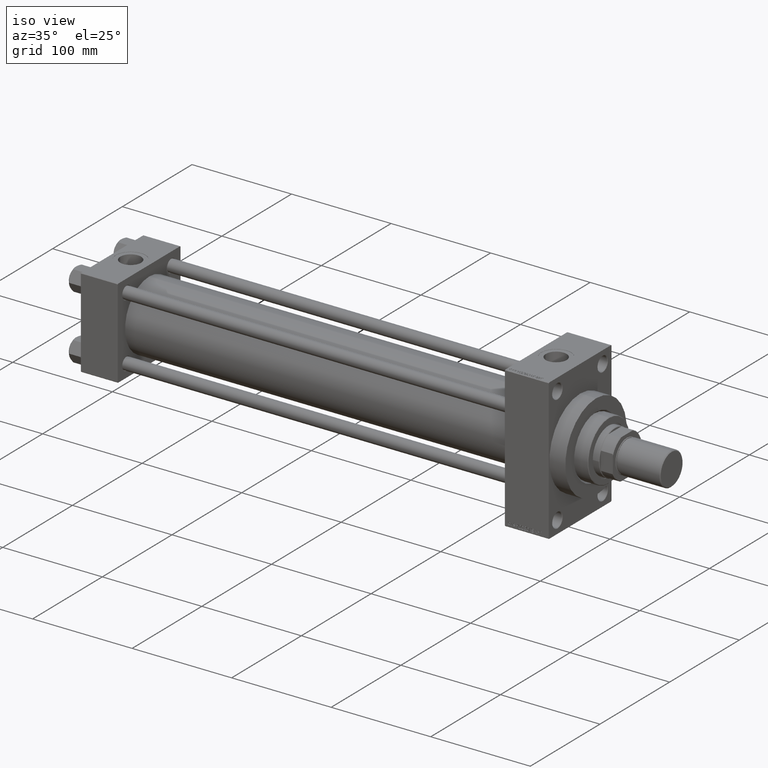
[diagram: clean part render]
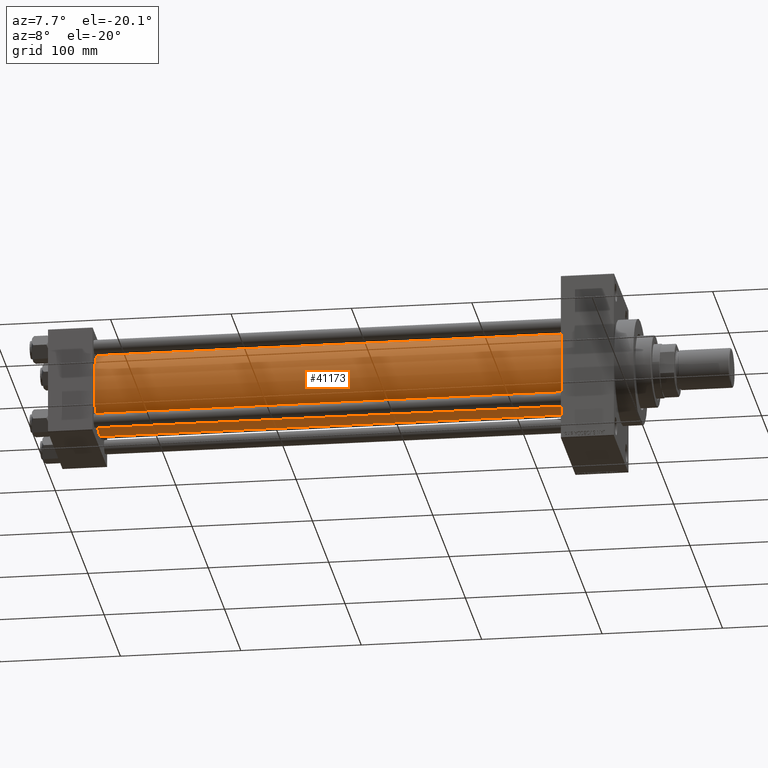
[diagram: tour spotlight — one face highlighted and labeled with its STEP entity id]
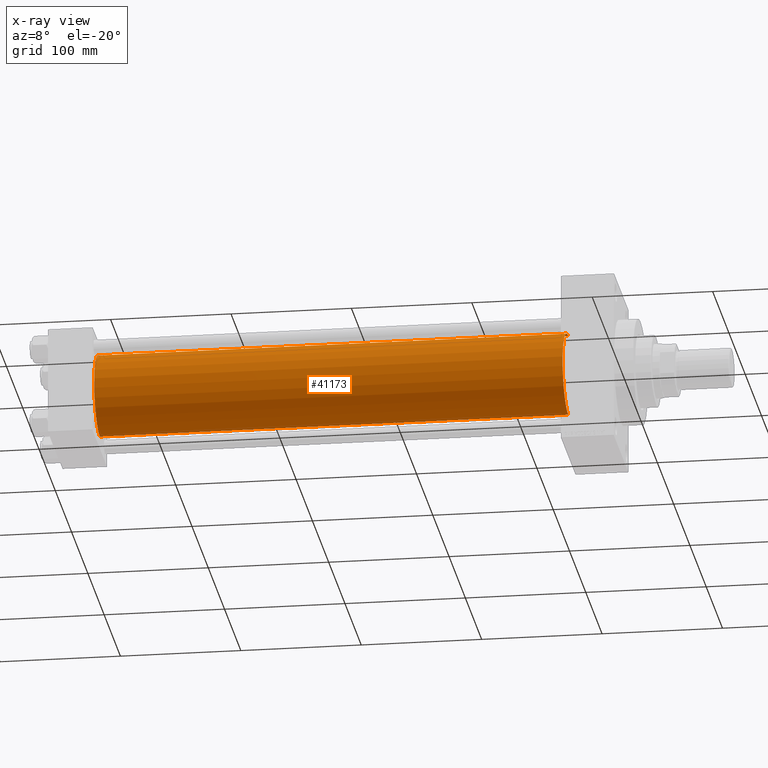
[diagram: x-ray of the same camera — body ghosted, this tour face saturated]
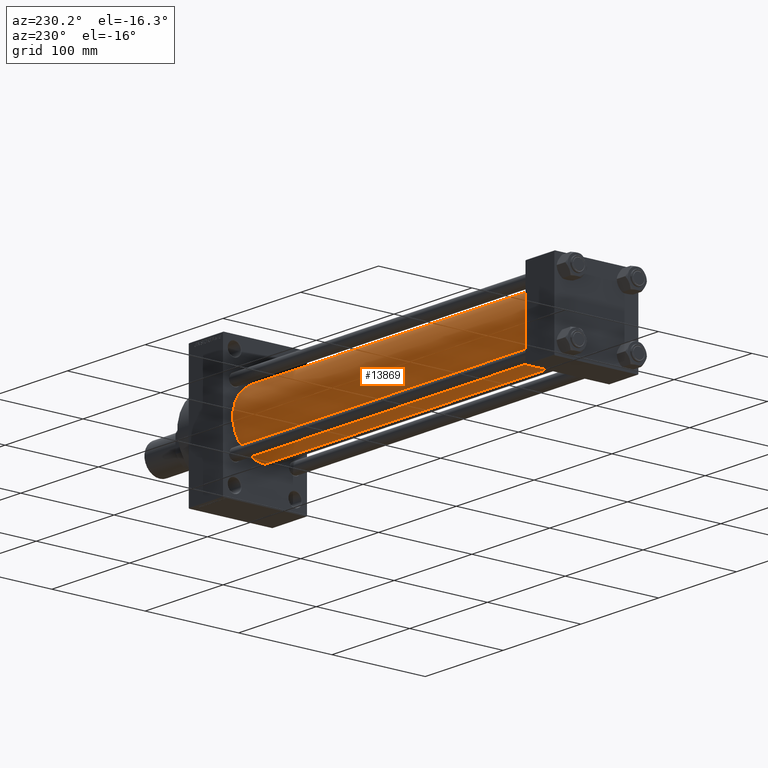
[diagram: tour spotlight — one face highlighted and labeled with its STEP entity id]
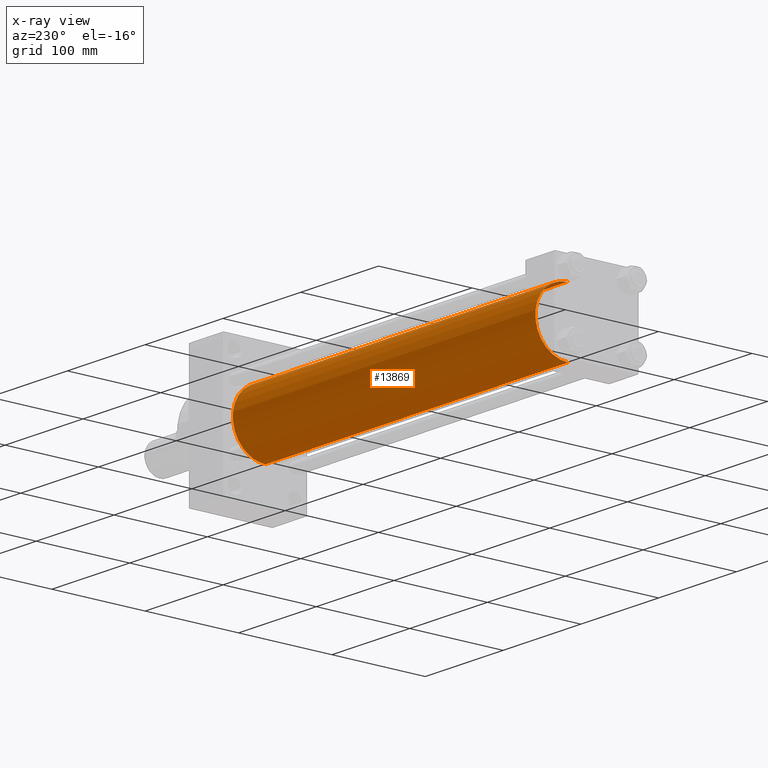
[diagram: x-ray of the same camera — body ghosted, this tour face saturated]
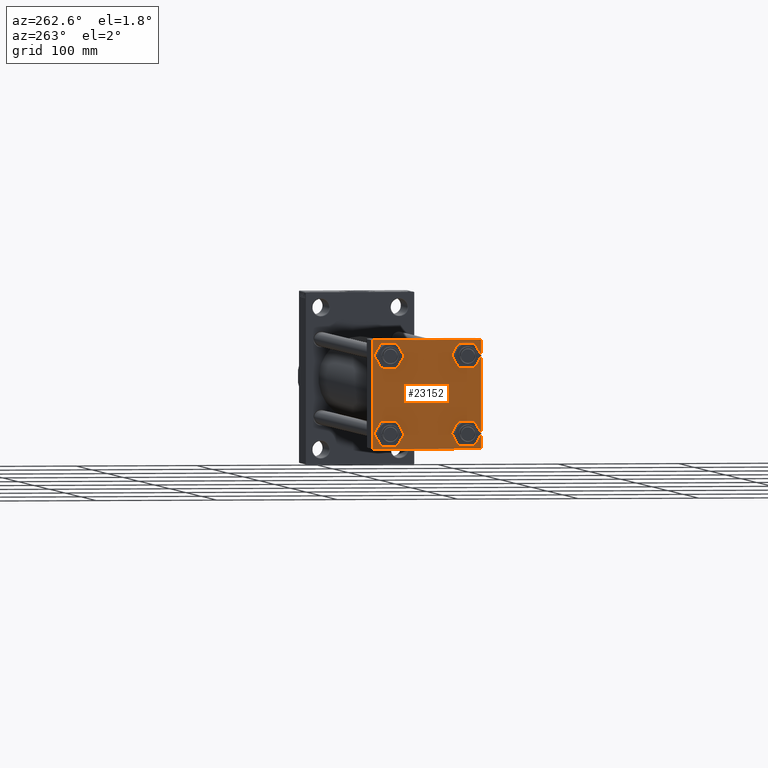
[diagram: tour spotlight — one face highlighted and labeled with its STEP entity id]
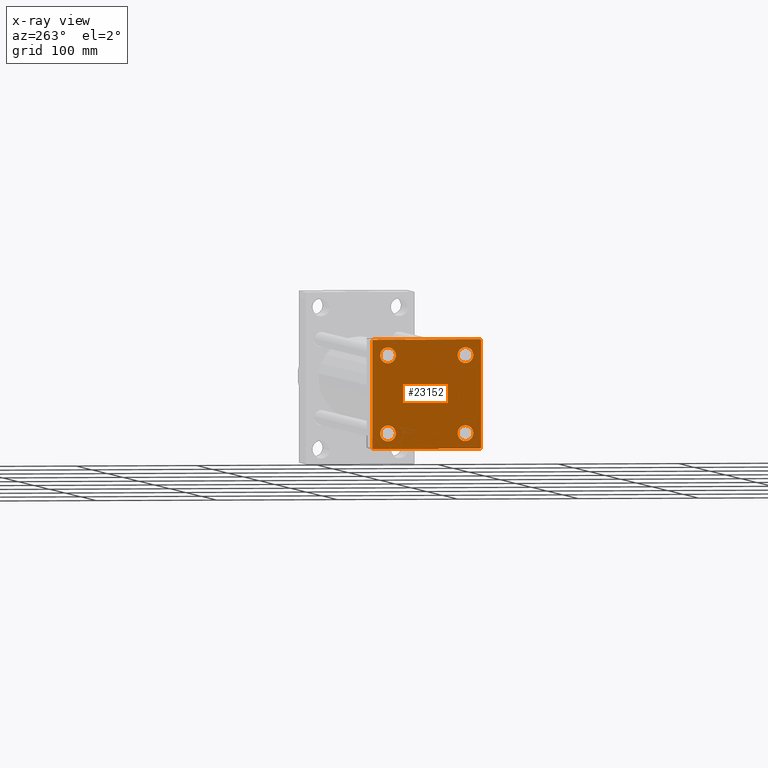
[diagram: x-ray of the same camera — body ghosted, this tour face saturated]
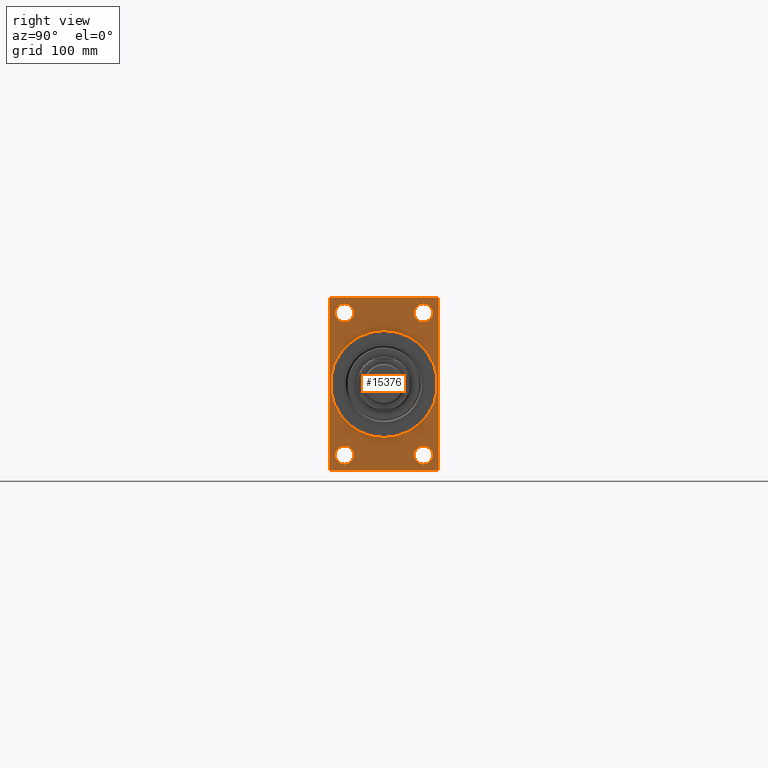
[diagram: tour spotlight — one face highlighted and labeled with its STEP entity id]
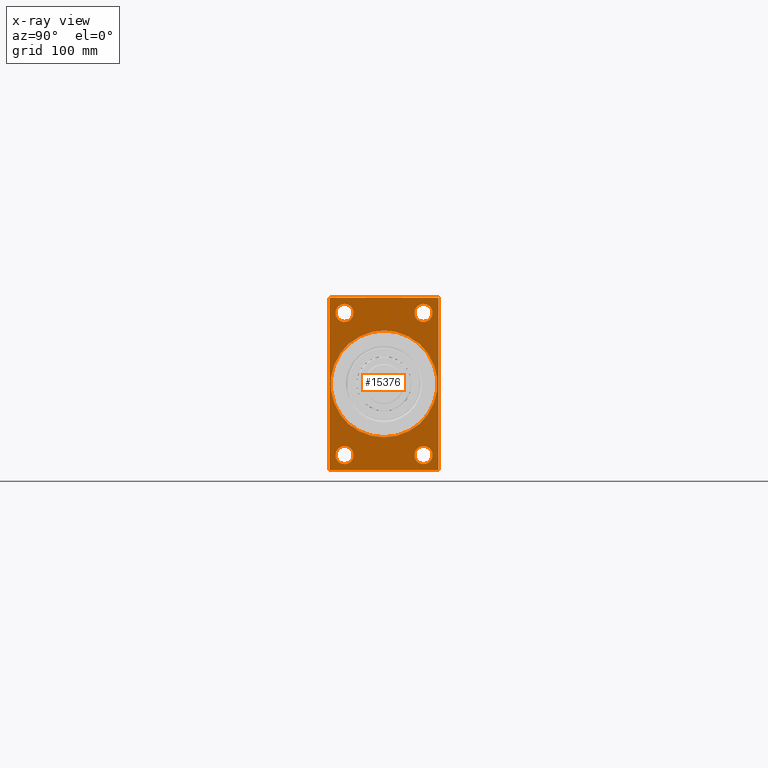
[diagram: x-ray of the same camera — body ghosted, this tour face saturated]
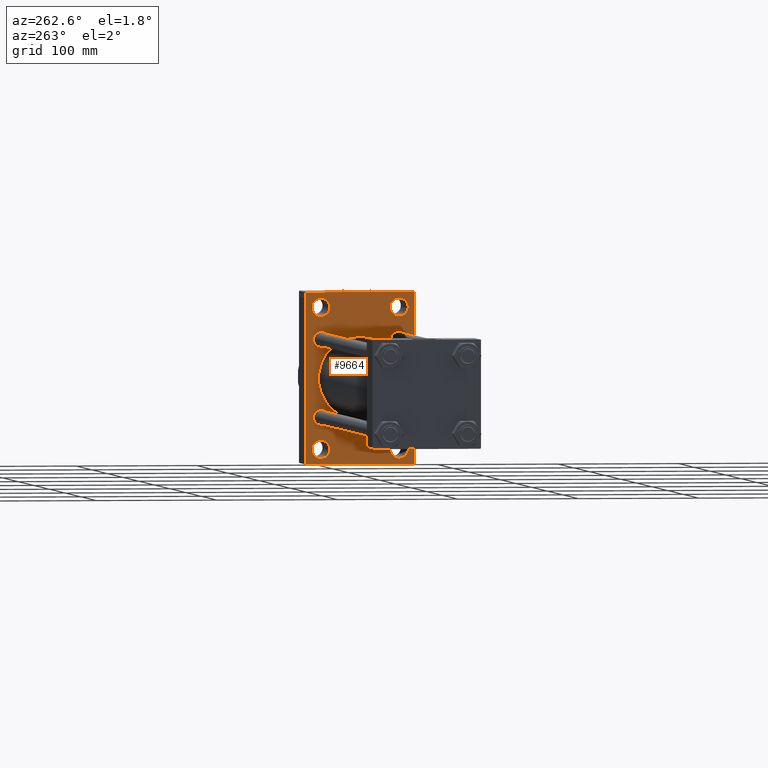
[diagram: tour spotlight — one face highlighted and labeled with its STEP entity id]
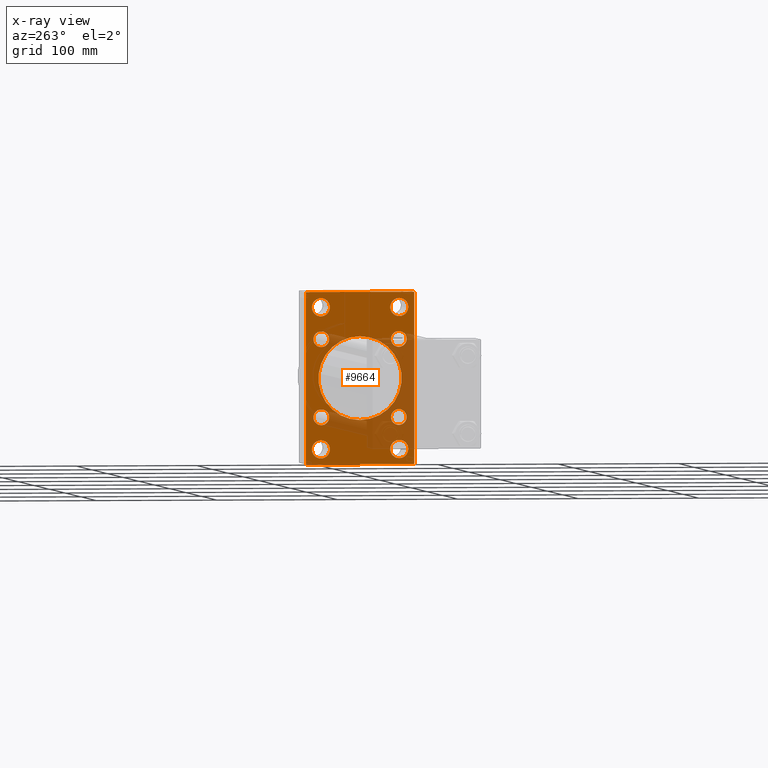
[diagram: x-ray of the same camera — body ghosted, this tour face saturated]
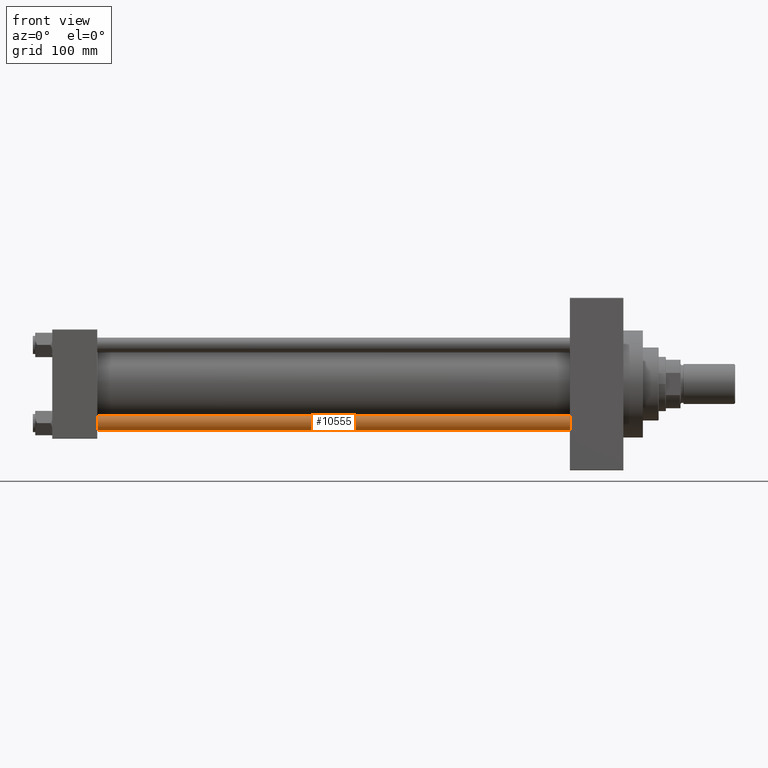
[diagram: tour spotlight — one face highlighted and labeled with its STEP entity id]
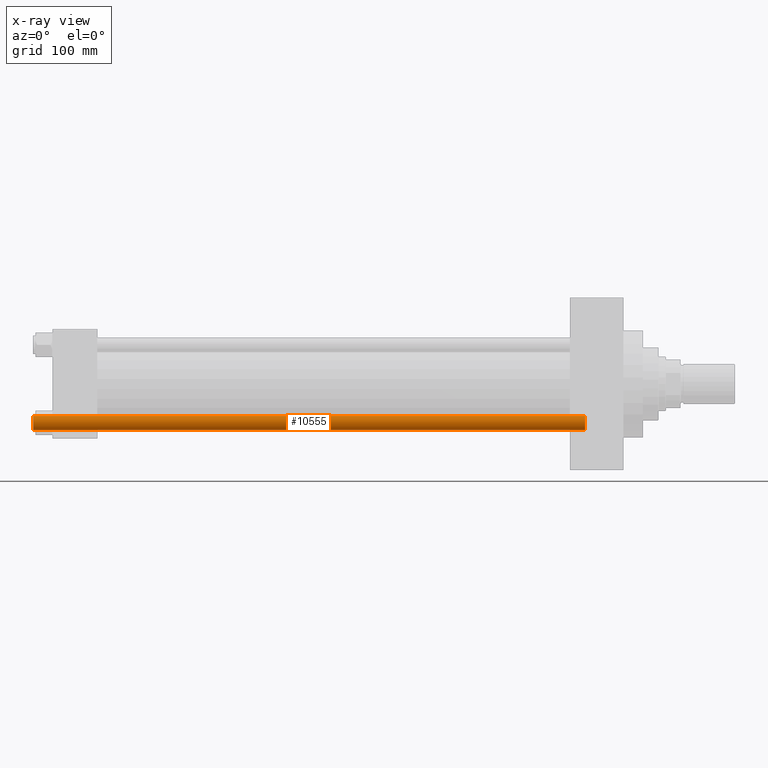
[diagram: x-ray of the same camera — body ghosted, this tour face saturated]
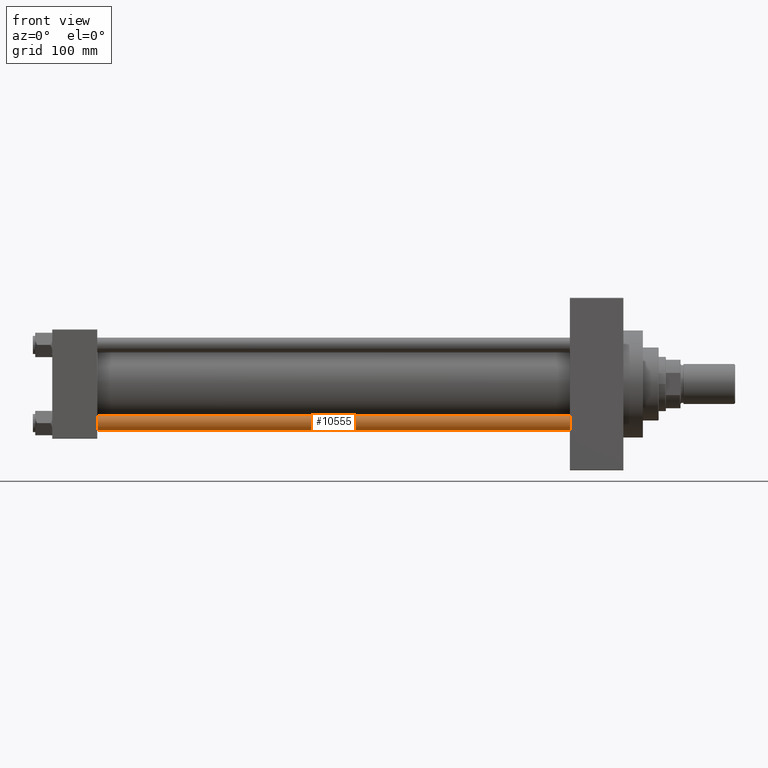
[diagram: tour spotlight — one face highlighted and labeled with its STEP entity id]
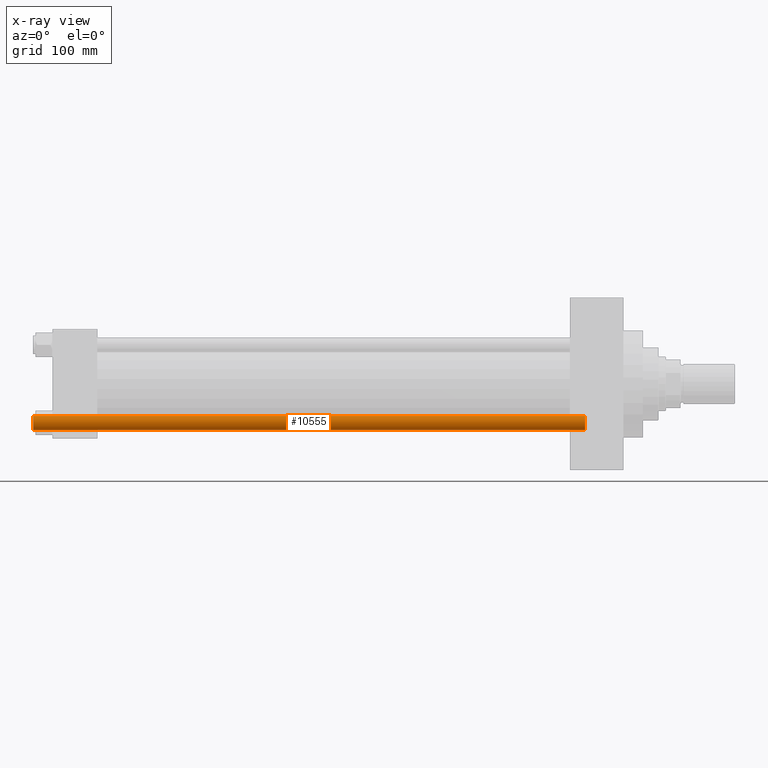
[diagram: x-ray of the same camera — body ghosted, this tour face saturated]
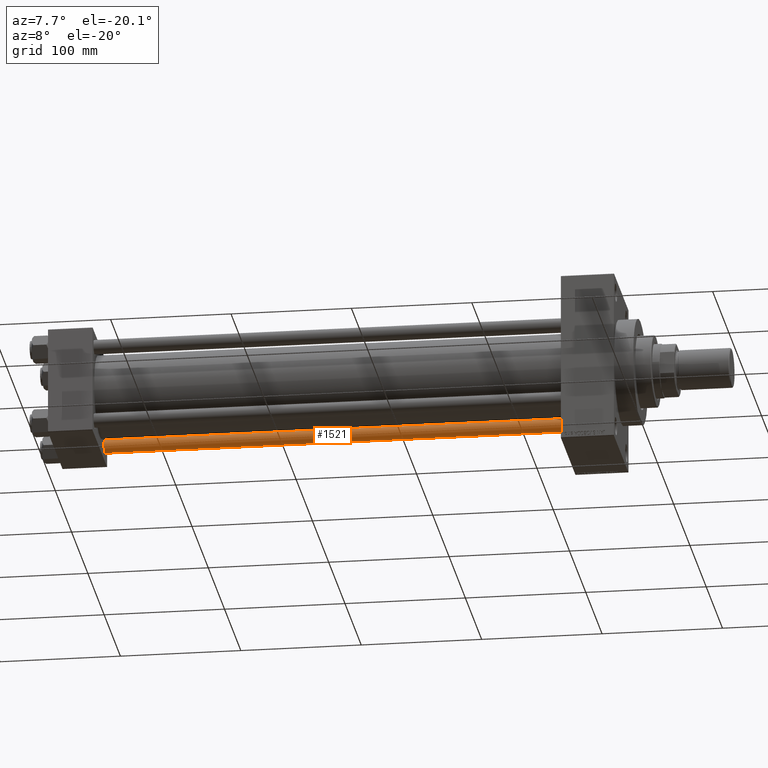
[diagram: tour spotlight — one face highlighted and labeled with its STEP entity id]
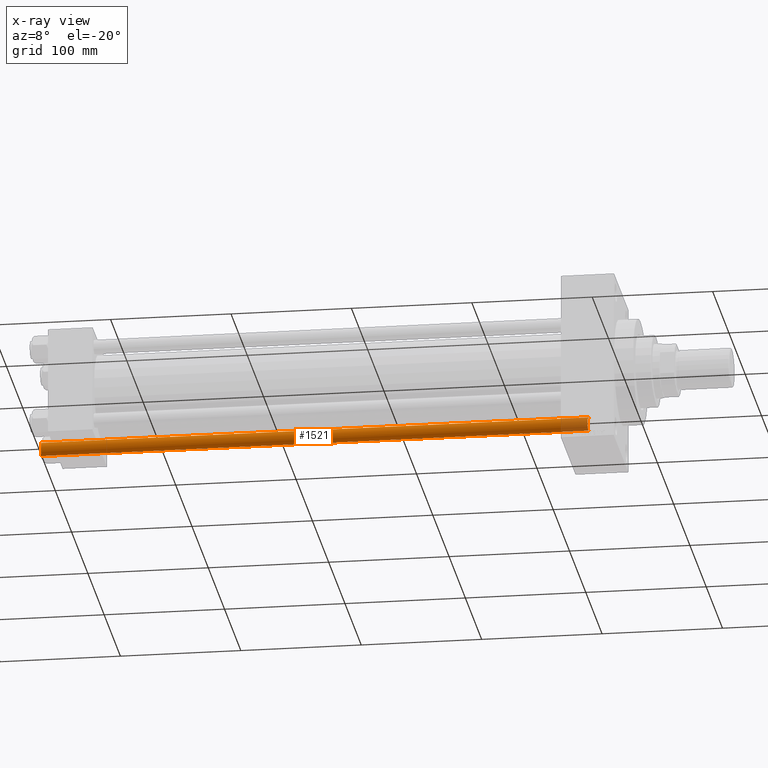
[diagram: x-ray of the same camera — body ghosted, this tour face saturated]
A machine part: a face-by-face anatomy tour. The part has 1116 B-rep faces; the first image is the clean iso view, then the 8 largest visible faces are spotlighted one at a time (largest first), each with its STEP entity span.

Face 1 — auxiliary view, entity #41173. An x-ray twin of the same camera follows (body ghosted, this face saturated) — the face is partly hidden behind the body. In plain terms, the highlighted cylindrical surface (partial cylindrical patch) has radius 34.5 mm, axis along (-1, -0, -0).
Definition (entity closure, byte-faithful):
#1968 = DIRECTION ( 'NONE',  ( -1.000000000000000000, -0.000000000000000000, -0.000000000000000000 ) ) ;
#3166 = VERTEX_POINT ( 'NONE', #32968 ) ;
#3458 = CARTESIAN_POINT ( 'NONE',  ( 426.0000000000000000, -2.602085213965210642E-15, 34.50000000000000000 ) ) ;
#3613 = DIRECTION ( 'NONE',  ( 0.000000000000000000, 0.000000000000000000, 1.000000000000000000 ) ) ;
#5926 = ORIENTED_EDGE ( 'NONE', *, *, #34002, .T. ) ;
#6319 = VERTEX_POINT ( 'NONE', #40664 ) ;
#7296 = AXIS2_PLACEMENT_3D ( 'NONE', #24034, #45500, #23801 ) ;
#10849 = AXIS2_PLACEMENT_3D ( 'NONE', #36616, #17601, #3613 ) ;
#13349 = CARTESIAN_POINT ( 'NONE',  ( 426.0000000000000000, 1.622946243093158675E-15, -34.50000000000000000 ) ) ;
#13442 = CIRCLE ( 'NONE', #7296, 34.50000000000000000 ) ;
#16174 = VECTOR ( 'NONE', #45646, 1000.000000000000000 ) ;
#17601 = DIRECTION ( 'NONE',  ( 1.000000000000000000, -0.000000000000000000, 0.000000000000000000 ) ) ;
#19412 = EDGE_CURVE ( 'NONE', #36626, #6319, #25619, .T. ) ;
#20262 = CYLINDRICAL_SURFACE ( 'NONE', #25853, 34.50000000000000000 ) ;
#21998 = DIRECTION ( 'NONE',  ( -1.000000000000000000, -0.000000000000000000, -0.000000000000000000 ) ) ;
#22805 = VECTOR ( 'NONE', #21998, 1000.000000000000000 ) ;
#23801 = DIRECTION ( 'NONE',  ( 0.000000000000000000, 0.000000000000000000, -1.000000000000000000 ) ) ;
#24034 = CARTESIAN_POINT ( 'NONE',  ( 426.0000000000000000, -2.602085213965210642E-15, 0.000000000000000000 ) ) ;
#24995 = CARTESIAN_POINT ( 'NONE',  ( 36.99999999999997868, 1.622946243093158675E-15, -34.50000000000000000 ) ) ;
#25619 = LINE ( 'NONE', #40325, #22805 ) ;
#25853 = AXIS2_PLACEMENT_3D ( 'NONE', #46526, #1968, #31356 ) ;
#26084 = ORIENTED_EDGE ( 'NONE', *, *, #37504, .F. ) ;
#27891 = EDGE_CURVE ( 'NONE', #3166, #44377, #39367, .T. ) ;
#28519 = CIRCLE ( 'NONE', #10849, 34.50000000000000000 ) ;
#31356 = DIRECTION ( 'NONE',  ( 0.000000000000000000, 0.000000000000000000, 1.000000000000000000 ) ) ;
#32968 = CARTESIAN_POINT ( 'NONE',  ( 426.0000000000000000, 1.622946243093158675E-15, -34.50000000000000000 ) ) ;
#34002 = EDGE_CURVE ( 'NONE', #6319, #44377, #28519, .T. ) ;
#34538 = ORIENTED_EDGE ( 'NONE', *, *, #19412, .T. ) ;
#36616 = CARTESIAN_POINT ( 'NONE',  ( 36.99999999999997868, -2.602085213965210642E-15, 0.000000000000000000 ) ) ;
#36626 = VERTEX_POINT ( 'NONE', #3458 ) ;
#37504 = EDGE_CURVE ( 'NONE', #36626, #3166, #13442, .T. ) ;
#39367 = LINE ( 'NONE', #13349, #16174 ) ;
#40325 = CARTESIAN_POINT ( 'NONE',  ( 426.0000000000000000, -2.602085213965210642E-15, 34.50000000000000000 ) ) ;
#40664 = CARTESIAN_POINT ( 'NONE',  ( 36.99999999999997868, -2.602085213965210642E-15, 34.50000000000000000 ) ) ;
#41173 = ADVANCED_FACE ( 'NONE', ( #46291 ), #20262, .T. ) ;
#41217 = EDGE_LOOP ( 'NONE', ( #44159, #26084, #34538, #5926 ) ) ;
#44159 = ORIENTED_EDGE ( 'NONE', *, *, #27891, .F. ) ;
#44377 = VERTEX_POINT ( 'NONE', #24995 ) ;
#45500 = DIRECTION ( 'NONE',  ( 1.000000000000000000, 0.000000000000000000, 0.000000000000000000 ) ) ;
#45646 = DIRECTION ( 'NONE',  ( -1.000000000000000000, -0.000000000000000000, -0.000000000000000000 ) ) ;
#46291 = FACE_OUTER_BOUND ( 'NONE', #41217, .T. ) ;
#46526 = CARTESIAN_POINT ( 'NONE',  ( 426.0000000000000000, -2.602085213965210642E-15, 0.000000000000000000 ) ) ;

Face 2 — auxiliary view, entity #13869. An x-ray twin of the same camera follows (body ghosted, this face saturated) — the face is partly hidden behind the body. In plain terms, the highlighted cylindrical surface (partial cylindrical patch) has radius 34.5 mm, axis along (-1, -0, -0).
Definition (entity closure, byte-faithful):
#3166 = VERTEX_POINT ( 'NONE', #32968 ) ;
#3458 = CARTESIAN_POINT ( 'NONE',  ( 426.0000000000000000, -2.602085213965210642E-15, 34.50000000000000000 ) ) ;
#5062 = DIRECTION ( 'NONE',  ( -1.000000000000000000, -0.000000000000000000, -0.000000000000000000 ) ) ;
#5613 = ORIENTED_EDGE ( 'NONE', *, *, #27891, .T. ) ;
#6319 = VERTEX_POINT ( 'NONE', #40664 ) ;
#8064 = EDGE_CURVE ( 'NONE', #3166, #36626, #36469, .T. ) ;
#9084 = DIRECTION ( 'NONE',  ( 0.000000000000000000, 0.000000000000000000, 1.000000000000000000 ) ) ;
#13349 = CARTESIAN_POINT ( 'NONE',  ( 426.0000000000000000, 1.622946243093158675E-15, -34.50000000000000000 ) ) ;
#13869 = ADVANCED_FACE ( 'NONE', ( #15899 ), #26982, .T. ) ;
#15899 = FACE_OUTER_BOUND ( 'NONE', #37263, .T. ) ;
#16174 = VECTOR ( 'NONE', #45646, 1000.000000000000000 ) ;
#19412 = EDGE_CURVE ( 'NONE', #36626, #6319, #25619, .T. ) ;
#20042 = DIRECTION ( 'NONE',  ( 0.000000000000000000, 0.000000000000000000, -1.000000000000000000 ) ) ;
#21998 = DIRECTION ( 'NONE',  ( -1.000000000000000000, -0.000000000000000000, -0.000000000000000000 ) ) ;
#22805 = VECTOR ( 'NONE', #21998, 1000.000000000000000 ) ;
#23122 = CARTESIAN_POINT ( 'NONE',  ( 426.0000000000000000, -2.602085213965210642E-15, 0.000000000000000000 ) ) ;
#23510 = DIRECTION ( 'NONE',  ( 1.000000000000000000, -0.000000000000000000, 0.000000000000000000 ) ) ;
#23655 = CARTESIAN_POINT ( 'NONE',  ( 426.0000000000000000, -2.602085213965210642E-15, 0.000000000000000000 ) ) ;
#24512 = ORIENTED_EDGE ( 'NONE', *, *, #8064, .F. ) ;
#24564 = AXIS2_PLACEMENT_3D ( 'NONE', #27368, #23510, #9084 ) ;
#24995 = CARTESIAN_POINT ( 'NONE',  ( 36.99999999999997868, 1.622946243093158675E-15, -34.50000000000000000 ) ) ;
#25619 = LINE ( 'NONE', #40325, #22805 ) ;
#25928 = EDGE_CURVE ( 'NONE', #44377, #6319, #26071, .T. ) ;
#26071 = CIRCLE ( 'NONE', #24564, 34.50000000000000000 ) ;
#26982 = CYLINDRICAL_SURFACE ( 'NONE', #35794, 34.50000000000000000 ) ;
#27368 = CARTESIAN_POINT ( 'NONE',  ( 36.99999999999997868, -2.602085213965210642E-15, 0.000000000000000000 ) ) ;
#27891 = EDGE_CURVE ( 'NONE', #3166, #44377, #39367, .T. ) ;
#29031 = ORIENTED_EDGE ( 'NONE', *, *, #25928, .T. ) ;
#32968 = CARTESIAN_POINT ( 'NONE',  ( 426.0000000000000000, 1.622946243093158675E-15, -34.50000000000000000 ) ) ;
#34609 = ORIENTED_EDGE ( 'NONE', *, *, #19412, .F. ) ;
#34988 = DIRECTION ( 'NONE',  ( 1.000000000000000000, 0.000000000000000000, 0.000000000000000000 ) ) ;
#35794 = AXIS2_PLACEMENT_3D ( 'NONE', #23122, #5062, #45056 ) ;
#36469 = CIRCLE ( 'NONE', #43382, 34.50000000000000000 ) ;
#36626 = VERTEX_POINT ( 'NONE', #3458 ) ;
#37263 = EDGE_LOOP ( 'NONE', ( #24512, #5613, #29031, #34609 ) ) ;
#39367 = LINE ( 'NONE', #13349, #16174 ) ;
#40325 = CARTESIAN_POINT ( 'NONE',  ( 426.0000000000000000, -2.602085213965210642E-15, 34.50000000000000000 ) ) ;
#40664 = CARTESIAN_POINT ( 'NONE',  ( 36.99999999999997868, -2.602085213965210642E-15, 34.50000000000000000 ) ) ;
#43382 = AXIS2_PLACEMENT_3D ( 'NONE', #23655, #34988, #20042 ) ;
#44377 = VERTEX_POINT ( 'NONE', #24995 ) ;
#45056 = DIRECTION ( 'NONE',  ( 0.000000000000000000, 0.000000000000000000, 1.000000000000000000 ) ) ;
#45646 = DIRECTION ( 'NONE',  ( -1.000000000000000000, -0.000000000000000000, -0.000000000000000000 ) ) ;

Face 3 — auxiliary view, entity #23152. An x-ray twin of the same camera follows (body ghosted, this face saturated) — the face is partly hidden behind the body. In plain terms, the highlighted planar face has unit normal (-1, 0, 0).
Definition (entity closure, byte-faithful):
#379 = EDGE_CURVE ( 'NONE', #17771, #14055, #30077, .T. ) ;
#852 = AXIS2_PLACEMENT_3D ( 'NONE', #25866, #18173, #39874 ) ;
#1671 = LINE ( 'NONE', #34902, #2091 ) ;
#1702 = EDGE_CURVE ( 'NONE', #2342, #30418, #30144, .T. ) ;
#1780 = ORIENTED_EDGE ( 'NONE', *, *, #33156, .T. ) ;
#2011 = EDGE_CURVE ( 'NONE', #30311, #28573, #18570, .T. ) ;
#2091 = VECTOR ( 'NONE', #12033, 1000.000000000000000 ) ;
#2342 = VERTEX_POINT ( 'NONE', #37075 ) ;
#2744 = ORIENTED_EDGE ( 'NONE', *, *, #20967, .F. ) ;
#2908 = CARTESIAN_POINT ( 'NONE',  ( 0.000000000000000000, -32.14999999999997726, 32.15000000000001279 ) ) ;
#2944 = PLANE ( 'NONE',  #5213 ) ;
#3270 = EDGE_LOOP ( 'NONE', ( #21303, #20118 ) ) ;
#3642 = VECTOR ( 'NONE', #36438, 1000.000000000000114 ) ;
#3777 = DIRECTION ( 'NONE',  ( 1.000000000000000000, -0.000000000000000000, 0.000000000000000000 ) ) ;
#4042 = EDGE_CURVE ( 'NONE', #46691, #28573, #42591, .T. ) ;
#4373 = VERTEX_POINT ( 'NONE', #36253 ) ;
#5213 = AXIS2_PLACEMENT_3D ( 'NONE', #39563, #25094, #32563 ) ;
#5231 = ORIENTED_EDGE ( 'NONE', *, *, #30767, .T. ) ;
#5283 = CARTESIAN_POINT ( 'NONE',  ( 0.000000000000000000, 44.74999999999998579, -44.74999999999998579 ) ) ;
#5933 = VERTEX_POINT ( 'NONE', #30457 ) ;
#6329 = FACE_BOUND ( 'NONE', #3270, .T. ) ;
#6381 = CARTESIAN_POINT ( 'NONE',  ( 0.000000000000000000, -32.14999999999997726, 32.15000000000001279 ) ) ;
#6519 = LINE ( 'NONE', #39051, #33717 ) ;
#7679 = ORIENTED_EDGE ( 'NONE', *, *, #30490, .T. ) ;
#10374 = DIRECTION ( 'NONE',  ( 0.000000000000000000, 0.000000000000000000, 1.000000000000000000 ) ) ;
#10570 = CARTESIAN_POINT ( 'NONE',  ( 0.000000000000000000, 32.14999999999999147, 38.64999999999999147 ) ) ;
#10812 = CARTESIAN_POINT ( 'NONE',  ( 0.000000000000000000, -32.14999999999997726, -38.64999999999999147 ) ) ;
#10870 = ORIENTED_EDGE ( 'NONE', *, *, #379, .T. ) ;
#11132 = CIRCLE ( 'NONE', #16528, 6.499999999999977796 ) ;
#11245 = DIRECTION ( 'NONE',  ( 0.000000000000000000, 0.000000000000000000, 1.000000000000000000 ) ) ;
#12033 = DIRECTION ( 'NONE',  ( 0.000000000000000000, -1.000000000000000000, -1.541976423090495387E-16 ) ) ;
#12262 = EDGE_CURVE ( 'NONE', #13258, #14522, #11132, .T. ) ;
#12298 = EDGE_CURVE ( 'NONE', #30418, #2342, #29592, .T. ) ;
#12309 = VERTEX_POINT ( 'NONE', #25536 ) ;
#12335 = CARTESIAN_POINT ( 'NONE',  ( 0.000000000000000000, 32.14999999999999147, 32.15000000000000568 ) ) ;
#12407 = EDGE_LOOP ( 'NONE', ( #19485, #18911, #22686, #15941, #28111, #28052, #2744, #7679 ) ) ;
#13258 = VERTEX_POINT ( 'NONE', #10570 ) ;
#14022 = FACE_BOUND ( 'NONE', #22468, .T. ) ;
#14055 = VERTEX_POINT ( 'NONE', #10812 ) ;
#14202 = CARTESIAN_POINT ( 'NONE',  ( 0.000000000000000000, 44.74999999999999289, 44.74999999999999289 ) ) ;
#14257 = FACE_BOUND ( 'NONE', #37115, .T. ) ;
#14522 = VERTEX_POINT ( 'NONE', #19769 ) ;
#14586 = CARTESIAN_POINT ( 'NONE',  ( 0.000000000000000000, 32.14999999999999147, -38.64999999999998437 ) ) ;
#14696 = AXIS2_PLACEMENT_3D ( 'NONE', #36782, #3777, #11245 ) ;
#15015 = VERTEX_POINT ( 'NONE', #23440 ) ;
#15941 = ORIENTED_EDGE ( 'NONE', *, *, #4042, .T. ) ;
#16268 = VERTEX_POINT ( 'NONE', #19784 ) ;
#16528 = AXIS2_PLACEMENT_3D ( 'NONE', #12335, #16889, #46286 ) ;
#16543 = VECTOR ( 'NONE', #19968, 1000.000000000000114 ) ;
#16889 = DIRECTION ( 'NONE',  ( 1.000000000000000000, -0.000000000000000000, 0.000000000000000000 ) ) ;
#17492 = AXIS2_PLACEMENT_3D ( 'NONE', #37720, #41097, #22531 ) ;
#17771 = VERTEX_POINT ( 'NONE', #18724 ) ;
#18173 = DIRECTION ( 'NONE',  ( 1.000000000000000000, -0.000000000000000000, 0.000000000000000000 ) ) ;
#18570 = LINE ( 'NONE', #22190, #41676 ) ;
#18724 = CARTESIAN_POINT ( 'NONE',  ( 0.000000000000000000, -32.14999999999997726, -25.65000000000003411 ) ) ;
#18911 = ORIENTED_EDGE ( 'NONE', *, *, #38484, .T. ) ;
#19172 = EDGE_CURVE ( 'NONE', #14522, #13258, #28290, .T. ) ;
#19485 = ORIENTED_EDGE ( 'NONE', *, *, #24348, .T. ) ;
#19769 = CARTESIAN_POINT ( 'NONE',  ( 0.000000000000000000, 32.14999999999999147, 25.65000000000002700 ) ) ;
#19784 = CARTESIAN_POINT ( 'NONE',  ( 0.000000000000000000, 44.49999999999998579, 45.00000000000001421 ) ) ;
#19968 = DIRECTION ( 'NONE',  ( -0.000000000000000000, -0.7071067811865474617, -0.7071067811865474617 ) ) ;
#20118 = ORIENTED_EDGE ( 'NONE', *, *, #19172, .T. ) ;
#20344 = CARTESIAN_POINT ( 'NONE',  ( 0.000000000000000000, -45.00000000000000000, -44.49999999999995737 ) ) ;
#20967 = EDGE_CURVE ( 'NONE', #16268, #15015, #1671, .T. ) ;
#21303 = ORIENTED_EDGE ( 'NONE', *, *, #12262, .T. ) ;
#21595 = CIRCLE ( 'NONE', #852, 6.499999999999977796 ) ;
#22190 = CARTESIAN_POINT ( 'NONE',  ( 0.000000000000000000, -45.00000000000000711, 45.00000000000000000 ) ) ;
#22468 = EDGE_LOOP ( 'NONE', ( #33968, #36301 ) ) ;
#22531 = DIRECTION ( 'NONE',  ( 0.000000000000000000, 0.000000000000000000, 1.000000000000000000 ) ) ;
#22659 = AXIS2_PLACEMENT_3D ( 'NONE', #28667, #29144, #28437 ) ;
#22686 = ORIENTED_EDGE ( 'NONE', *, *, #30528, .T. ) ;
#23152 = ADVANCED_FACE ( 'NONE', ( #14022, #14257, #42944, #6329, #39097 ), #2944, .T. ) ;
#23440 = CARTESIAN_POINT ( 'NONE',  ( 0.000000000000000000, -44.49999999999995737, 45.00000000000000000 ) ) ;
#23573 = LINE ( 'NONE', #5283, #16543 ) ;
#24348 = EDGE_CURVE ( 'NONE', #5933, #44058, #6519, .T. ) ;
#24571 = DIRECTION ( 'NONE',  ( 0.000000000000000000, 0.7071067811865474617, -0.7071067811865474617 ) ) ;
#24677 = AXIS2_PLACEMENT_3D ( 'NONE', #28580, #32429, #28349 ) ;
#24829 = ORIENTED_EDGE ( 'NONE', *, *, #37306, .T. ) ;
#25094 = DIRECTION ( 'NONE',  ( -1.000000000000000000, 0.000000000000000000, -0.000000000000000000 ) ) ;
#25536 = CARTESIAN_POINT ( 'NONE',  ( 0.000000000000000000, 44.49999999999998579, -44.99999999999998579 ) ) ;
#25595 = VECTOR ( 'NONE', #31505, 1000.000000000000114 ) ;
#25866 = CARTESIAN_POINT ( 'NONE',  ( 0.000000000000000000, 32.14999999999999147, -32.15000000000000568 ) ) ;
#28052 = ORIENTED_EDGE ( 'NONE', *, *, #44096, .T. ) ;
#28111 = ORIENTED_EDGE ( 'NONE', *, *, #2011, .F. ) ;
#28290 = CIRCLE ( 'NONE', #17492, 6.499999999999977796 ) ;
#28349 = DIRECTION ( 'NONE',  ( 0.000000000000000000, 0.000000000000000000, 1.000000000000000000 ) ) ;
#28437 = DIRECTION ( 'NONE',  ( 0.000000000000000000, 0.000000000000000000, 1.000000000000000000 ) ) ;
#28536 = DIRECTION ( 'NONE',  ( 0.000000000000000000, 0.000000000000000000, 1.000000000000000000 ) ) ;
#28573 = VERTEX_POINT ( 'NONE', #20344 ) ;
#28580 = CARTESIAN_POINT ( 'NONE',  ( 0.000000000000000000, -32.14999999999997726, -32.15000000000001279 ) ) ;
#28659 = CARTESIAN_POINT ( 'NONE',  ( 0.000000000000000000, 44.99999999999998579, -44.99999999999998579 ) ) ;
#28667 = CARTESIAN_POINT ( 'NONE',  ( 0.000000000000000000, -32.14999999999997726, -32.15000000000001279 ) ) ;
#29144 = DIRECTION ( 'NONE',  ( 1.000000000000000000, -0.000000000000000000, 0.000000000000000000 ) ) ;
#29592 = CIRCLE ( 'NONE', #43460, 6.500000000000019540 ) ;
#30068 = VECTOR ( 'NONE', #35895, 1000.000000000000000 ) ;
#30077 = CIRCLE ( 'NONE', #24677, 6.499999999999977796 ) ;
#30144 = CIRCLE ( 'NONE', #37061, 6.500000000000019540 ) ;
#30311 = VERTEX_POINT ( 'NONE', #46031 ) ;
#30418 = VERTEX_POINT ( 'NONE', #31809 ) ;
#30457 = CARTESIAN_POINT ( 'NONE',  ( 0.000000000000000000, 44.99999999999998579, 44.50000000000001421 ) ) ;
#30490 = EDGE_CURVE ( 'NONE', #16268, #5933, #32042, .T. ) ;
#30528 = EDGE_CURVE ( 'NONE', #12309, #46691, #39508, .T. ) ;
#30767 = EDGE_CURVE ( 'NONE', #44776, #4373, #21595, .T. ) ;
#31133 = CIRCLE ( 'NONE', #22659, 6.499999999999977796 ) ;
#31505 = DIRECTION ( 'NONE',  ( 0.000000000000000000, -0.7071067811865474617, 0.7071067811865474617 ) ) ;
#31809 = CARTESIAN_POINT ( 'NONE',  ( 0.000000000000000000, -32.14999999999997726, 25.64999999999999147 ) ) ;
#31877 = CARTESIAN_POINT ( 'NONE',  ( 0.000000000000000000, 44.99999999999998579, -44.49999999999995737 ) ) ;
#32042 = LINE ( 'NONE', #14202, #46234 ) ;
#32429 = DIRECTION ( 'NONE',  ( 1.000000000000000000, -0.000000000000000000, 0.000000000000000000 ) ) ;
#32563 = DIRECTION ( 'NONE',  ( -0.000000000000000000, 0.000000000000000000, 1.000000000000000000 ) ) ;
#33125 = CIRCLE ( 'NONE', #14696, 6.499999999999977796 ) ;
#33156 = EDGE_CURVE ( 'NONE', #4373, #44776, #33125, .T. ) ;
#33717 = VECTOR ( 'NONE', #35201, 1000.000000000000000 ) ;
#33968 = ORIENTED_EDGE ( 'NONE', *, *, #1702, .T. ) ;
#34902 = CARTESIAN_POINT ( 'NONE',  ( 0.000000000000000000, 44.99999999999998579, 45.00000000000001421 ) ) ;
#35201 = DIRECTION ( 'NONE',  ( 0.000000000000000000, 0.000000000000000000, -1.000000000000000000 ) ) ;
#35895 = DIRECTION ( 'NONE',  ( 0.000000000000000000, -1.000000000000000000, -1.541976423090495633E-16 ) ) ;
#35968 = CARTESIAN_POINT ( 'NONE',  ( -0.000000000000000000, -44.75000000000029843, 44.74999999999967315 ) ) ;
#36072 = CARTESIAN_POINT ( 'NONE',  ( 0.000000000000000000, -44.74999999999998579, -44.74999999999998579 ) ) ;
#36204 = LINE ( 'NONE', #35968, #3642 ) ;
#36253 = CARTESIAN_POINT ( 'NONE',  ( 0.000000000000000000, 32.14999999999999147, -25.65000000000002700 ) ) ;
#36301 = ORIENTED_EDGE ( 'NONE', *, *, #12298, .T. ) ;
#36438 = DIRECTION ( 'NONE',  ( -0.000000000000000000, 0.7071067811865425767, 0.7071067811865524577 ) ) ;
#36782 = CARTESIAN_POINT ( 'NONE',  ( 0.000000000000000000, 32.14999999999999147, -32.15000000000000568 ) ) ;
#37061 = AXIS2_PLACEMENT_3D ( 'NONE', #6381, #39619, #28536 ) ;
#37075 = CARTESIAN_POINT ( 'NONE',  ( 0.000000000000000000, -32.14999999999997726, 38.65000000000003411 ) ) ;
#37115 = EDGE_LOOP ( 'NONE', ( #10870, #24829 ) ) ;
#37306 = EDGE_CURVE ( 'NONE', #14055, #17771, #31133, .T. ) ;
#37720 = CARTESIAN_POINT ( 'NONE',  ( 0.000000000000000000, 32.14999999999999147, 32.15000000000000568 ) ) ;
#38484 = EDGE_CURVE ( 'NONE', #44058, #12309, #23573, .T. ) ;
#39051 = CARTESIAN_POINT ( 'NONE',  ( 0.000000000000000000, 44.99999999999998579, 45.00000000000001421 ) ) ;
#39097 = FACE_OUTER_BOUND ( 'NONE', #12407, .T. ) ;
#39312 = EDGE_LOOP ( 'NONE', ( #1780, #5231 ) ) ;
#39508 = LINE ( 'NONE', #28659, #30068 ) ;
#39563 = CARTESIAN_POINT ( 'NONE',  ( 0.000000000000000000, 0.000000000000000000, 0.000000000000000000 ) ) ;
#39619 = DIRECTION ( 'NONE',  ( 1.000000000000000000, -0.000000000000000000, 0.000000000000000000 ) ) ;
#39874 = DIRECTION ( 'NONE',  ( 0.000000000000000000, 0.000000000000000000, 1.000000000000000000 ) ) ;
#41097 = DIRECTION ( 'NONE',  ( 1.000000000000000000, -0.000000000000000000, 0.000000000000000000 ) ) ;
#41676 = VECTOR ( 'NONE', #44597, 1000.000000000000000 ) ;
#42591 = LINE ( 'NONE', #36072, #25595 ) ;
#42944 = FACE_BOUND ( 'NONE', #39312, .T. ) ;
#43460 = AXIS2_PLACEMENT_3D ( 'NONE', #2908, #47475, #10374 ) ;
#43723 = CARTESIAN_POINT ( 'NONE',  ( 0.000000000000000000, -44.49999999999995737, -45.00000000000000000 ) ) ;
#44058 = VERTEX_POINT ( 'NONE', #31877 ) ;
#44096 = EDGE_CURVE ( 'NONE', #30311, #15015, #36204, .T. ) ;
#44597 = DIRECTION ( 'NONE',  ( 0.000000000000000000, 7.709882115452476934E-17, -1.000000000000000000 ) ) ;
#44776 = VERTEX_POINT ( 'NONE', #14586 ) ;
#46031 = CARTESIAN_POINT ( 'NONE',  ( 0.000000000000000000, -45.00000000000000711, 44.49999999999997158 ) ) ;
#46234 = VECTOR ( 'NONE', #24571, 1000.000000000000114 ) ;
#46286 = DIRECTION ( 'NONE',  ( 0.000000000000000000, 0.000000000000000000, 1.000000000000000000 ) ) ;
#46691 = VERTEX_POINT ( 'NONE', #43723 ) ;
#47475 = DIRECTION ( 'NONE',  ( 1.000000000000000000, -0.000000000000000000, 0.000000000000000000 ) ) ;

Face 4 — right view, entity #15376. An x-ray twin of the same camera follows (body ghosted, this face saturated) — the face is partly hidden behind the body. In plain terms, the highlighted planar face has unit normal (-1, 0, 0).
Definition (entity closure, byte-faithful):
#7 = EDGE_CURVE ( 'NONE', #43096, #18127, #16977, .T. ) ;
#32 = CARTESIAN_POINT ( 'NONE',  ( 470.0000000000000000, 5.388445916248353619E-15, -44.00000000000000000 ) ) ;
#163 = ORIENTED_EDGE ( 'NONE', *, *, #4215, .F. ) ;
#352 = VECTOR ( 'NONE', #31816, 1000.000000000000000 ) ;
#358 = CARTESIAN_POINT ( 'NONE',  ( 470.0000000000000000, 44.49999999999995737, -70.99999999999998579 ) ) ;
#726 = CARTESIAN_POINT ( 'NONE',  ( 470.0000000000000000, 32.50000000000000711, 58.50000000000000711 ) ) ;
#766 = LINE ( 'NONE', #7516, #26327 ) ;
#794 = EDGE_CURVE ( 'NONE', #34746, #20305, #17009, .T. ) ;
#933 = CARTESIAN_POINT ( 'NONE',  ( 470.0000000000000000, -44.99999999999997158, -70.50000000000005684 ) ) ;
#1111 = VERTEX_POINT ( 'NONE', #933 ) ;
#1287 = DIRECTION ( 'NONE',  ( -1.000000000000000000, 0.000000000000000000, -0.000000000000000000 ) ) ;
#1807 = CARTESIAN_POINT ( 'NONE',  ( 470.0000000000000000, 32.50000000000000711, -65.99999999999994316 ) ) ;
#1827 = EDGE_CURVE ( 'NONE', #43818, #26857, #24744, .T. ) ;
#1889 = VERTEX_POINT ( 'NONE', #5131 ) ;
#1982 = ORIENTED_EDGE ( 'NONE', *, *, #794, .T. ) ;
#1993 = ORIENTED_EDGE ( 'NONE', *, *, #2961, .T. ) ;
#2072 = CARTESIAN_POINT ( 'NONE',  ( 470.0000000000000000, 32.50000000000000711, -51.00000000000004263 ) ) ;
#2105 = AXIS2_PLACEMENT_3D ( 'NONE', #12083, #16167, #23148 ) ;
#2236 = DIRECTION ( 'NONE',  ( 0.000000000000000000, 0.000000000000000000, 1.000000000000000000 ) ) ;
#2355 = AXIS2_PLACEMENT_3D ( 'NONE', #10402, #6323, #21940 ) ;
#2426 = LINE ( 'NONE', #17116, #352 ) ;
#2516 = DIRECTION ( 'NONE',  ( 0.000000000000000000, 0.000000000000000000, 1.000000000000000000 ) ) ;
#2820 = EDGE_CURVE ( 'NONE', #43907, #22880, #32564, .T. ) ;
#2872 = CARTESIAN_POINT ( 'NONE',  ( 470.0000000000000000, 32.50000000000000711, -58.50000000000000000 ) ) ;
#2961 = EDGE_CURVE ( 'NONE', #1111, #38622, #766, .T. ) ;
#2984 = ORIENTED_EDGE ( 'NONE', *, *, #11577, .T. ) ;
#3108 = CIRCLE ( 'NONE', #2355, 44.00000000000000000 ) ;
#3580 = LINE ( 'NONE', #32978, #41124 ) ;
#4114 = VECTOR ( 'NONE', #20030, 1000.000000000000000 ) ;
#4132 = VERTEX_POINT ( 'NONE', #11009 ) ;
#4215 = EDGE_CURVE ( 'NONE', #44536, #8297, #13295, .T. ) ;
#4473 = DIRECTION ( 'NONE',  ( 0.000000000000000000, 0.000000000000000000, 1.000000000000000000 ) ) ;
#5086 = DIRECTION ( 'NONE',  ( -1.000000000000000000, 0.000000000000000000, -0.000000000000000000 ) ) ;
#5131 = CARTESIAN_POINT ( 'NONE',  ( 470.0000000000000000, 45.00000000000002132, 70.50000000000000000 ) ) ;
#5356 = DIRECTION ( 'NONE',  ( -1.000000000000000000, 0.000000000000000000, -0.000000000000000000 ) ) ;
#5565 = FACE_BOUND ( 'NONE', #22997, .T. ) ;
#5851 = DIRECTION ( 'NONE',  ( -0.000000000000000000, 0.7071067811865769936, 0.7071067811865181518 ) ) ;
#6138 = DIRECTION ( 'NONE',  ( -1.000000000000000000, 0.000000000000000000, -0.000000000000000000 ) ) ;
#6323 = DIRECTION ( 'NONE',  ( 1.000000000000000000, 0.000000000000000000, 0.000000000000000000 ) ) ;
#6622 = CARTESIAN_POINT ( 'NONE',  ( 470.0000000000000000, 45.00000000000001421, -70.49999999999997158 ) ) ;
#6728 = DIRECTION ( 'NONE',  ( -1.000000000000000000, 0.000000000000000000, -0.000000000000000000 ) ) ;
#7358 = CARTESIAN_POINT ( 'NONE',  ( 470.0000000000000000, -32.50000000000000000, -65.99999999999992895 ) ) ;
#7516 = CARTESIAN_POINT ( 'NONE',  ( 470.0000000000000000, -44.50000000000002842, -71.00000000000000000 ) ) ;
#7518 = CIRCLE ( 'NONE', #13642, 7.499999999999951150 ) ;
#7817 = DIRECTION ( 'NONE',  ( 0.000000000000000000, -1.000000000000000000, -1.541976423090495387E-16 ) ) ;
#8297 = VERTEX_POINT ( 'NONE', #32 ) ;
#8477 = FACE_BOUND ( 'NONE', #26528, .T. ) ;
#8713 = FACE_BOUND ( 'NONE', #39503, .T. ) ;
#8756 = VERTEX_POINT ( 'NONE', #19136 ) ;
#9399 = EDGE_CURVE ( 'NONE', #37378, #10816, #12340, .T. ) ;
#9400 = ORIENTED_EDGE ( 'NONE', *, *, #37420, .T. ) ;
#9456 = DIRECTION ( 'NONE',  ( 0.000000000000000000, 0.000000000000000000, 1.000000000000000000 ) ) ;
#9471 = ORIENTED_EDGE ( 'NONE', *, *, #7, .T. ) ;
#10017 = EDGE_CURVE ( 'NONE', #26857, #43818, #15669, .T. ) ;
#10402 = CARTESIAN_POINT ( 'NONE',  ( 470.0000000000000000, 0.000000000000000000, 0.000000000000000000 ) ) ;
#10816 = VERTEX_POINT ( 'NONE', #44706 ) ;
#10999 = ORIENTED_EDGE ( 'NONE', *, *, #15479, .F. ) ;
#11009 = CARTESIAN_POINT ( 'NONE',  ( 470.0000000000000000, 44.50000000000002132, 71.00000000000000000 ) ) ;
#11577 = EDGE_CURVE ( 'NONE', #1889, #4132, #3580, .T. ) ;
#12083 = CARTESIAN_POINT ( 'NONE',  ( 470.0000000000000000, 32.50000000000000711, 58.50000000000000711 ) ) ;
#12322 = DIRECTION ( 'NONE',  ( -0.000000000000000000, 0.000000000000000000, 1.000000000000000000 ) ) ;
#12340 = LINE ( 'NONE', #41733, #4114 ) ;
#12362 = CARTESIAN_POINT ( 'NONE',  ( 470.0000000000000000, -32.50000000000000000, 58.50000000000000711 ) ) ;
#12792 = AXIS2_PLACEMENT_3D ( 'NONE', #27479, #5086, #12322 ) ;
#13295 = CIRCLE ( 'NONE', #31760, 44.00000000000000000 ) ;
#13642 = AXIS2_PLACEMENT_3D ( 'NONE', #44471, #37234, #4473 ) ;
#14778 = VECTOR ( 'NONE', #5851, 1000.000000000000000 ) ;
#15376 = ADVANCED_FACE ( 'NONE', ( #8477, #8713, #5565, #27006, #38337, #38091 ), #34955, .F. ) ;
#15479 = EDGE_CURVE ( 'NONE', #1889, #22880, #39282, .T. ) ;
#15669 = CIRCLE ( 'NONE', #26463, 7.499999999999944045 ) ;
#15710 = ORIENTED_EDGE ( 'NONE', *, *, #2820, .T. ) ;
#15796 = CARTESIAN_POINT ( 'NONE',  ( 470.0000000000000000, 0.000000000000000000, 0.000000000000000000 ) ) ;
#16119 = DIRECTION ( 'NONE',  ( 0.000000000000000000, -1.000000000000000000, -1.541976423090495633E-16 ) ) ;
#16167 = DIRECTION ( 'NONE',  ( -1.000000000000000000, 0.000000000000000000, -0.000000000000000000 ) ) ;
#16303 = ORIENTED_EDGE ( 'NONE', *, *, #47145, .T. ) ;
#16763 = EDGE_LOOP ( 'NONE', ( #163, #19987 ) ) ;
#16827 = LINE ( 'NONE', #27909, #46563 ) ;
#16977 = CIRCLE ( 'NONE', #43897, 7.499999999999951150 ) ;
#17009 = CIRCLE ( 'NONE', #41642, 7.499999999999936939 ) ;
#17116 = CARTESIAN_POINT ( 'NONE',  ( 470.0000000000000000, -44.99999999999997158, 70.99999999999998579 ) ) ;
#17568 = DIRECTION ( 'NONE',  ( 0.000000000000000000, 0.000000000000000000, 1.000000000000000000 ) ) ;
#17823 = CARTESIAN_POINT ( 'NONE',  ( 470.0000000000000000, 45.00000000000002132, 71.00000000000000000 ) ) ;
#18127 = VERTEX_POINT ( 'NONE', #1807 ) ;
#18646 = CARTESIAN_POINT ( 'NONE',  ( 470.0000000000000000, -32.50000000000000000, 51.00000000000007105 ) ) ;
#19136 = CARTESIAN_POINT ( 'NONE',  ( 470.0000000000000000, 32.50000000000000711, 65.99999999999994316 ) ) ;
#19177 = EDGE_CURVE ( 'NONE', #18127, #43096, #7518, .T. ) ;
#19963 = VERTEX_POINT ( 'NONE', #43585 ) ;
#19987 = ORIENTED_EDGE ( 'NONE', *, *, #29060, .F. ) ;
#20030 = DIRECTION ( 'NONE',  ( -0.000000000000000000, -0.7071067811865426878, -0.7071067811865524577 ) ) ;
#20127 = DIRECTION ( 'NONE',  ( 0.000000000000000000, 0.000000000000000000, -1.000000000000000000 ) ) ;
#20305 = VERTEX_POINT ( 'NONE', #18646 ) ;
#20820 = EDGE_CURVE ( 'NONE', #8756, #19963, #38232, .T. ) ;
#20883 = AXIS2_PLACEMENT_3D ( 'NONE', #23898, #1287, #37666 ) ;
#21094 = ORIENTED_EDGE ( 'NONE', *, *, #19177, .T. ) ;
#21940 = DIRECTION ( 'NONE',  ( 0.000000000000000000, 0.000000000000000000, -1.000000000000000000 ) ) ;
#22880 = VERTEX_POINT ( 'NONE', #6622 ) ;
#22997 = EDGE_LOOP ( 'NONE', ( #21094, #9471 ) ) ;
#23148 = DIRECTION ( 'NONE',  ( 0.000000000000000000, 0.000000000000000000, 1.000000000000000000 ) ) ;
#23898 = CARTESIAN_POINT ( 'NONE',  ( 470.0000000000000000, -32.50000000000000000, -58.49999999999999289 ) ) ;
#24385 = CARTESIAN_POINT ( 'NONE',  ( 470.0000000000000000, 45.00000000000001421, -70.49999999999997158 ) ) ;
#24580 = CARTESIAN_POINT ( 'NONE',  ( 470.0000000000000000, -44.49999999999995026, 70.99999999999998579 ) ) ;
#24744 = CIRCLE ( 'NONE', #20883, 7.499999999999944045 ) ;
#25414 = ORIENTED_EDGE ( 'NONE', *, *, #28894, .T. ) ;
#25737 = DIRECTION ( 'NONE',  ( 0.000000000000000000, -0.7071067811865474617, 0.7071067811865474617 ) ) ;
#25950 = CIRCLE ( 'NONE', #2105, 7.499999999999936939 ) ;
#26016 = CARTESIAN_POINT ( 'NONE',  ( 470.0000000000000000, -32.50000000000000000, 65.99999999999994316 ) ) ;
#26327 = VECTOR ( 'NONE', #47511, 999.9999999999998863 ) ;
#26463 = AXIS2_PLACEMENT_3D ( 'NONE', #27513, #5356, #9456 ) ;
#26528 = EDGE_LOOP ( 'NONE', ( #25414, #1982 ) ) ;
#26857 = VERTEX_POINT ( 'NONE', #7358 ) ;
#27006 = FACE_BOUND ( 'NONE', #33910, .T. ) ;
#27479 = CARTESIAN_POINT ( 'NONE',  ( 470.0000000000000000, 0.000000000000000000, 0.000000000000000000 ) ) ;
#27513 = CARTESIAN_POINT ( 'NONE',  ( 470.0000000000000000, -32.50000000000000000, -58.49999999999999289 ) ) ;
#27909 = CARTESIAN_POINT ( 'NONE',  ( 470.0000000000000000, 45.00000000000001421, -70.99999999999998579 ) ) ;
#28074 = ORIENTED_EDGE ( 'NONE', *, *, #1827, .T. ) ;
#28894 = EDGE_CURVE ( 'NONE', #20305, #34746, #36160, .T. ) ;
#29060 = EDGE_CURVE ( 'NONE', #8297, #44536, #3108, .T. ) ;
#29384 = DIRECTION ( 'NONE',  ( -1.000000000000000000, 0.000000000000000000, -0.000000000000000000 ) ) ;
#30039 = CARTESIAN_POINT ( 'NONE',  ( 470.0000000000000000, 0.000000000000000000, 44.00000000000000000 ) ) ;
#30742 = DIRECTION ( 'NONE',  ( 1.000000000000000000, 0.000000000000000000, 0.000000000000000000 ) ) ;
#31380 = DIRECTION ( 'NONE',  ( -1.000000000000000000, 0.000000000000000000, -0.000000000000000000 ) ) ;
#31760 = AXIS2_PLACEMENT_3D ( 'NONE', #15796, #30742, #20127 ) ;
#31816 = DIRECTION ( 'NONE',  ( 0.000000000000000000, 0.000000000000000000, -1.000000000000000000 ) ) ;
#32564 = LINE ( 'NONE', #24385, #14778 ) ;
#32978 = CARTESIAN_POINT ( 'NONE',  ( 470.0000000000000000, 44.50000000000002132, 71.00000000000000000 ) ) ;
#33245 = DIRECTION ( 'NONE',  ( 0.000000000000000000, 0.000000000000000000, 1.000000000000000000 ) ) ;
#33372 = EDGE_CURVE ( 'NONE', #4132, #37378, #41054, .T. ) ;
#33910 = EDGE_LOOP ( 'NONE', ( #16303, #46019 ) ) ;
#34746 = VERTEX_POINT ( 'NONE', #26016 ) ;
#34955 = PLANE ( 'NONE',  #12792 ) ;
#35431 = DIRECTION ( 'NONE',  ( 0.000000000000000000, -4.886545002751570165E-17, -1.000000000000000000 ) ) ;
#35873 = EDGE_LOOP ( 'NONE', ( #9400, #1993, #36939, #15710, #10999, #2984, #42933, #37220 ) ) ;
#36160 = CIRCLE ( 'NONE', #45415, 7.499999999999936939 ) ;
#36267 = CARTESIAN_POINT ( 'NONE',  ( 470.0000000000000000, -32.50000000000000000, -51.00000000000003553 ) ) ;
#36939 = ORIENTED_EDGE ( 'NONE', *, *, #38428, .F. ) ;
#37220 = ORIENTED_EDGE ( 'NONE', *, *, #9399, .T. ) ;
#37234 = DIRECTION ( 'NONE',  ( -1.000000000000000000, 0.000000000000000000, -0.000000000000000000 ) ) ;
#37378 = VERTEX_POINT ( 'NONE', #24580 ) ;
#37420 = EDGE_CURVE ( 'NONE', #10816, #1111, #2426, .T. ) ;
#37666 = DIRECTION ( 'NONE',  ( 0.000000000000000000, 0.000000000000000000, 1.000000000000000000 ) ) ;
#37774 = VECTOR ( 'NONE', #7817, 1000.000000000000000 ) ;
#38091 = FACE_OUTER_BOUND ( 'NONE', #35873, .T. ) ;
#38164 = VECTOR ( 'NONE', #35431, 1000.000000000000000 ) ;
#38232 = CIRCLE ( 'NONE', #38980, 7.499999999999936939 ) ;
#38337 = FACE_BOUND ( 'NONE', #16763, .T. ) ;
#38428 = EDGE_CURVE ( 'NONE', #43907, #38622, #16827, .T. ) ;
#38622 = VERTEX_POINT ( 'NONE', #44270 ) ;
#38980 = AXIS2_PLACEMENT_3D ( 'NONE', #726, #29384, #33245 ) ;
#39282 = LINE ( 'NONE', #17823, #38164 ) ;
#39503 = EDGE_LOOP ( 'NONE', ( #40207, #28074 ) ) ;
#40207 = ORIENTED_EDGE ( 'NONE', *, *, #10017, .T. ) ;
#41054 = LINE ( 'NONE', #43720, #37774 ) ;
#41124 = VECTOR ( 'NONE', #25737, 1000.000000000000114 ) ;
#41642 = AXIS2_PLACEMENT_3D ( 'NONE', #43461, #6138, #2516 ) ;
#41733 = CARTESIAN_POINT ( 'NONE',  ( 470.0000000000000000, -44.99999999999997158, 70.49999999999998579 ) ) ;
#42933 = ORIENTED_EDGE ( 'NONE', *, *, #33372, .T. ) ;
#43096 = VERTEX_POINT ( 'NONE', #2072 ) ;
#43461 = CARTESIAN_POINT ( 'NONE',  ( 470.0000000000000000, -32.50000000000000000, 58.50000000000000711 ) ) ;
#43585 = CARTESIAN_POINT ( 'NONE',  ( 470.0000000000000000, 32.50000000000000711, 51.00000000000007105 ) ) ;
#43720 = CARTESIAN_POINT ( 'NONE',  ( 470.0000000000000000, 45.00000000000002132, 71.00000000000000000 ) ) ;
#43818 = VERTEX_POINT ( 'NONE', #36267 ) ;
#43897 = AXIS2_PLACEMENT_3D ( 'NONE', #2872, #6728, #17568 ) ;
#43907 = VERTEX_POINT ( 'NONE', #358 ) ;
#44270 = CARTESIAN_POINT ( 'NONE',  ( 470.0000000000000000, -44.50000000000000000, -71.00000000000000000 ) ) ;
#44471 = CARTESIAN_POINT ( 'NONE',  ( 470.0000000000000000, 32.50000000000000711, -58.50000000000000000 ) ) ;
#44536 = VERTEX_POINT ( 'NONE', #30039 ) ;
#44706 = CARTESIAN_POINT ( 'NONE',  ( 470.0000000000000000, -44.99999999999997158, 70.49999999999998579 ) ) ;
#45415 = AXIS2_PLACEMENT_3D ( 'NONE', #12362, #31380, #2236 ) ;
#46019 = ORIENTED_EDGE ( 'NONE', *, *, #20820, .T. ) ;
#46563 = VECTOR ( 'NONE', #16119, 1000.000000000000000 ) ;
#47145 = EDGE_CURVE ( 'NONE', #19963, #8756, #25950, .T. ) ;
#47511 = DIRECTION ( 'NONE',  ( 0.000000000000000000, 0.7071067811865574537, -0.7071067811865376918 ) ) ;

Face 5 — auxiliary view, entity #9664. An x-ray twin of the same camera follows (body ghosted, this face saturated) — the face is partly hidden behind the body. In plain terms, the highlighted planar face has unit normal (-1, 0, 0).
Definition (entity closure, byte-faithful):
#154 = VERTEX_POINT ( 'NONE', #32975 ) ;
#216 = CARTESIAN_POINT ( 'NONE',  ( 426.0000000000000000, -32.14999999999997726, -25.65000000000000568 ) ) ;
#303 = AXIS2_PLACEMENT_3D ( 'NONE', #3090, #6003, #2855 ) ;
#340 = CARTESIAN_POINT ( 'NONE',  ( 426.0000000000000000, -32.50000000000000000, 50.99999999999995026 ) ) ;
#374 = CARTESIAN_POINT ( 'NONE',  ( 426.0000000000000000, 32.14999999999999147, -38.65000000000001279 ) ) ;
#518 = EDGE_CURVE ( 'NONE', #46647, #43069, #36989, .T. ) ;
#520 = VERTEX_POINT ( 'NONE', #13180 ) ;
#550 = CARTESIAN_POINT ( 'NONE',  ( 426.0000000000000000, 45.00000000000001421, -70.49999999999997158 ) ) ;
#861 = AXIS2_PLACEMENT_3D ( 'NONE', #10046, #24728, #39430 ) ;
#935 = EDGE_LOOP ( 'NONE', ( #34857, #14628 ) ) ;
#1023 = AXIS2_PLACEMENT_3D ( 'NONE', #33524, #43898, #25582 ) ;
#1061 = CARTESIAN_POINT ( 'NONE',  ( 426.0000000000000000, 57.74999999999812417, -57.75000000000292744 ) ) ;
#1164 = VERTEX_POINT ( 'NONE', #216 ) ;
#1354 = CIRCLE ( 'NONE', #25171, 6.500000000000005329 ) ;
#1380 = VERTEX_POINT ( 'NONE', #20877 ) ;
#1635 = EDGE_CURVE ( 'NONE', #31213, #45030, #3973, .T. ) ;
#1653 = CARTESIAN_POINT ( 'NONE',  ( 426.0000000000000000, -32.14999999999997726, -38.65000000000001990 ) ) ;
#1966 = CARTESIAN_POINT ( 'NONE',  ( 426.0000000000000000, -44.49999999999995026, 70.99999999999998579 ) ) ;
#2057 = CARTESIAN_POINT ( 'NONE',  ( 426.0000000000000000, 32.50000000000000711, 58.50000000000000711 ) ) ;
#2855 = DIRECTION ( 'NONE',  ( -0.000000000000000000, 0.000000000000000000, 1.000000000000000000 ) ) ;
#3090 = CARTESIAN_POINT ( 'NONE',  ( 426.0000000000000000, 0.000000000000000000, 0.000000000000000000 ) ) ;
#3166 = VERTEX_POINT ( 'NONE', #32968 ) ;
#3458 = CARTESIAN_POINT ( 'NONE',  ( 426.0000000000000000, -2.602085213965210642E-15, 34.50000000000000000 ) ) ;
#3804 = EDGE_CURVE ( 'NONE', #32891, #1164, #42536, .T. ) ;
#3822 = CARTESIAN_POINT ( 'NONE',  ( 426.0000000000000000, 32.14999999999999147, -32.15000000000000568 ) ) ;
#3973 = CIRCLE ( 'NONE', #10932, 7.500000000000062172 ) ;
#3980 = ORIENTED_EDGE ( 'NONE', *, *, #45836, .T. ) ;
#4185 = DIRECTION ( 'NONE',  ( -0.000000000000000000, -0.7071067811865769936, -0.7071067811865181518 ) ) ;
#4581 = ORIENTED_EDGE ( 'NONE', *, *, #5552, .T. ) ;
#4698 = EDGE_LOOP ( 'NONE', ( #4581, #9166 ) ) ;
#5319 = EDGE_LOOP ( 'NONE', ( #27853, #33559 ) ) ;
#5552 = EDGE_CURVE ( 'NONE', #44560, #38306, #38712, .T. ) ;
#5852 = VECTOR ( 'NONE', #42025, 1000.000000000000000 ) ;
#5922 = CARTESIAN_POINT ( 'NONE',  ( 426.0000000000000000, 32.14999999999999147, 38.65000000000001279 ) ) ;
#6003 = DIRECTION ( 'NONE',  ( -1.000000000000000000, 0.000000000000000000, -0.000000000000000000 ) ) ;
#6190 = DIRECTION ( 'NONE',  ( 0.000000000000000000, 0.000000000000000000, 1.000000000000000000 ) ) ;
#6476 = FACE_BOUND ( 'NONE', #31222, .T. ) ;
#6601 = VERTEX_POINT ( 'NONE', #8326 ) ;
#6713 = FACE_BOUND ( 'NONE', #31089, .T. ) ;
#7296 = AXIS2_PLACEMENT_3D ( 'NONE', #24034, #45500, #23801 ) ;
#7445 = DIRECTION ( 'NONE',  ( 1.000000000000000000, -0.000000000000000000, 0.000000000000000000 ) ) ;
#7626 = ORIENTED_EDGE ( 'NONE', *, *, #40486, .T. ) ;
#7712 = CARTESIAN_POINT ( 'NONE',  ( 426.0000000000000000, 32.50000000000000711, -66.00000000000005684 ) ) ;
#7812 = DIRECTION ( 'NONE',  ( 1.000000000000000000, -0.000000000000000000, 0.000000000000000000 ) ) ;
#8064 = EDGE_CURVE ( 'NONE', #3166, #36626, #36469, .T. ) ;
#8173 = DIRECTION ( 'NONE',  ( 1.000000000000000000, -0.000000000000000000, 0.000000000000000000 ) ) ;
#8326 = CARTESIAN_POINT ( 'NONE',  ( 426.0000000000000000, -44.50000000000000000, -71.00000000000000000 ) ) ;
#8592 = CIRCLE ( 'NONE', #20126, 6.499999999999999112 ) ;
#8976 = AXIS2_PLACEMENT_3D ( 'NONE', #9888, #21651, #20937 ) ;
#8989 = ORIENTED_EDGE ( 'NONE', *, *, #23299, .T. ) ;
#9107 = DIRECTION ( 'NONE',  ( 1.000000000000000000, -0.000000000000000000, 0.000000000000000000 ) ) ;
#9166 = ORIENTED_EDGE ( 'NONE', *, *, #26415, .T. ) ;
#9622 = FACE_BOUND ( 'NONE', #35757, .T. ) ;
#9664 = ADVANCED_FACE ( 'NONE', ( #9622, #46469, #43089, #10093, #39476, #6476, #39005, #6713, #36101, #28151 ), #20683, .T. ) ;
#9888 = CARTESIAN_POINT ( 'NONE',  ( 426.0000000000000000, -32.50000000000000000, 58.50000000000000711 ) ) ;
#10046 = CARTESIAN_POINT ( 'NONE',  ( 426.0000000000000000, 32.14999999999999147, 32.15000000000000568 ) ) ;
#10058 = VERTEX_POINT ( 'NONE', #24365 ) ;
#10093 = FACE_BOUND ( 'NONE', #935, .T. ) ;
#10212 = VERTEX_POINT ( 'NONE', #32076 ) ;
#10483 = CARTESIAN_POINT ( 'NONE',  ( 426.0000000000000000, -44.99999999999997158, 70.99999999999998579 ) ) ;
#10630 = EDGE_LOOP ( 'NONE', ( #35871, #24616 ) ) ;
#10742 = CARTESIAN_POINT ( 'NONE',  ( 426.0000000000000000, -32.14999999999997726, -32.15000000000001279 ) ) ;
#10932 = AXIS2_PLACEMENT_3D ( 'NONE', #2057, #34105, #16742 ) ;
#11658 = DIRECTION ( 'NONE',  ( -0.000000000000000000, 0.7071067811865426878, 0.7071067811865524577 ) ) ;
#11663 = EDGE_CURVE ( 'NONE', #17007, #10212, #41883, .T. ) ;
#11735 = CARTESIAN_POINT ( 'NONE',  ( 426.0000000000000000, 32.50000000000000711, -50.99999999999993605 ) ) ;
#11892 = DIRECTION ( 'NONE',  ( 1.000000000000000000, -0.000000000000000000, 0.000000000000000000 ) ) ;
#11913 = CARTESIAN_POINT ( 'NONE',  ( 426.0000000000000000, 45.00000000000002132, 71.00000000000000000 ) ) ;
#12146 = AXIS2_PLACEMENT_3D ( 'NONE', #41048, #7812, #22486 ) ;
#12282 = EDGE_CURVE ( 'NONE', #10212, #17007, #41163, .T. ) ;
#12696 = ORIENTED_EDGE ( 'NONE', *, *, #30894, .T. ) ;
#12772 = ORIENTED_EDGE ( 'NONE', *, *, #22177, .T. ) ;
#13180 = CARTESIAN_POINT ( 'NONE',  ( 426.0000000000000000, -44.99999999999997158, -70.50000000000005684 ) ) ;
#13442 = CIRCLE ( 'NONE', #7296, 34.50000000000000000 ) ;
#13520 = VECTOR ( 'NONE', #17482, 1000.000000000000114 ) ;
#14110 = DIRECTION ( 'NONE',  ( 1.000000000000000000, -0.000000000000000000, 0.000000000000000000 ) ) ;
#14178 = EDGE_CURVE ( 'NONE', #10058, #21550, #47570, .T. ) ;
#14612 = VERTEX_POINT ( 'NONE', #42888 ) ;
#14628 = ORIENTED_EDGE ( 'NONE', *, *, #1635, .T. ) ;
#15344 = LINE ( 'NONE', #40893, #36846 ) ;
#15540 = EDGE_CURVE ( 'NONE', #1380, #21550, #17590, .T. ) ;
#15742 = DIRECTION ( 'NONE',  ( 1.000000000000000000, -0.000000000000000000, 0.000000000000000000 ) ) ;
#15817 = CARTESIAN_POINT ( 'NONE',  ( 426.0000000000000000, -32.50000000000000000, -58.49999999999999289 ) ) ;
#16742 = DIRECTION ( 'NONE',  ( 0.000000000000000000, 0.000000000000000000, 1.000000000000000000 ) ) ;
#17007 = VERTEX_POINT ( 'NONE', #374 ) ;
#17226 = CARTESIAN_POINT ( 'NONE',  ( 426.0000000000000000, 32.14999999999999147, 25.65000000000000213 ) ) ;
#17482 = DIRECTION ( 'NONE',  ( 0.000000000000000000, 0.7071067811865474617, -0.7071067811865474617 ) ) ;
#17590 = LINE ( 'NONE', #39753, #46622 ) ;
#18132 = CARTESIAN_POINT ( 'NONE',  ( 426.0000000000000000, -32.14999999999997726, 38.65000000000002700 ) ) ;
#18816 = AXIS2_PLACEMENT_3D ( 'NONE', #35678, #43374, #28205 ) ;
#19428 = DIRECTION ( 'NONE',  ( 1.000000000000000000, -0.000000000000000000, 0.000000000000000000 ) ) ;
#19757 = CIRCLE ( 'NONE', #46683, 7.500000000000069278 ) ;
#19927 = EDGE_CURVE ( 'NONE', #32463, #39666, #32035, .T. ) ;
#20042 = DIRECTION ( 'NONE',  ( 0.000000000000000000, 0.000000000000000000, -1.000000000000000000 ) ) ;
#20126 = AXIS2_PLACEMENT_3D ( 'NONE', #44901, #11892, #38389 ) ;
#20669 = ORIENTED_EDGE ( 'NONE', *, *, #8064, .T. ) ;
#20683 = PLANE ( 'NONE',  #303 ) ;
#20877 = CARTESIAN_POINT ( 'NONE',  ( 426.0000000000000000, 44.50000000000002132, 71.00000000000000000 ) ) ;
#20937 = DIRECTION ( 'NONE',  ( 0.000000000000000000, 0.000000000000000000, 1.000000000000000000 ) ) ;
#21095 = AXIS2_PLACEMENT_3D ( 'NONE', #3822, #7445, #22595 ) ;
#21196 = EDGE_CURVE ( 'NONE', #14612, #32675, #19757, .T. ) ;
#21266 = ORIENTED_EDGE ( 'NONE', *, *, #30919, .T. ) ;
#21431 = DIRECTION ( 'NONE',  ( 0.000000000000000000, -1.000000000000000000, -1.541976423090495387E-16 ) ) ;
#21456 = VERTEX_POINT ( 'NONE', #550 ) ;
#21550 = VERTEX_POINT ( 'NONE', #1966 ) ;
#21560 = CARTESIAN_POINT ( 'NONE',  ( 426.0000000000000000, 57.75000000000000000, 57.75000000000000000 ) ) ;
#21651 = DIRECTION ( 'NONE',  ( 1.000000000000000000, -0.000000000000000000, 0.000000000000000000 ) ) ;
#22177 = EDGE_CURVE ( 'NONE', #30065, #6601, #36988, .T. ) ;
#22219 = CIRCLE ( 'NONE', #43796, 7.500000000000062172 ) ;
#22418 = EDGE_LOOP ( 'NONE', ( #23997, #20669 ) ) ;
#22486 = DIRECTION ( 'NONE',  ( 0.000000000000000000, 0.000000000000000000, 1.000000000000000000 ) ) ;
#22595 = DIRECTION ( 'NONE',  ( 0.000000000000000000, 0.000000000000000000, 1.000000000000000000 ) ) ;
#22877 = VECTOR ( 'NONE', #29998, 1000.000000000000000 ) ;
#22973 = DIRECTION ( 'NONE',  ( 0.000000000000000000, 0.000000000000000000, 1.000000000000000000 ) ) ;
#23200 = CARTESIAN_POINT ( 'NONE',  ( 426.0000000000000000, -32.50000000000000000, -50.99999999999992184 ) ) ;
#23299 = EDGE_CURVE ( 'NONE', #39666, #32463, #41402, .T. ) ;
#23438 = LINE ( 'NONE', #1061, #28588 ) ;
#23513 = AXIS2_PLACEMENT_3D ( 'NONE', #35566, #14110, #32651 ) ;
#23655 = CARTESIAN_POINT ( 'NONE',  ( 426.0000000000000000, -2.602085213965210642E-15, 0.000000000000000000 ) ) ;
#23801 = DIRECTION ( 'NONE',  ( 0.000000000000000000, 0.000000000000000000, -1.000000000000000000 ) ) ;
#23997 = ORIENTED_EDGE ( 'NONE', *, *, #37504, .T. ) ;
#24034 = CARTESIAN_POINT ( 'NONE',  ( 426.0000000000000000, -2.602085213965210642E-15, 0.000000000000000000 ) ) ;
#24365 = CARTESIAN_POINT ( 'NONE',  ( 426.0000000000000000, -44.99999999999997158, 70.49999999999998579 ) ) ;
#24616 = ORIENTED_EDGE ( 'NONE', *, *, #11663, .T. ) ;
#24728 = DIRECTION ( 'NONE',  ( 1.000000000000000000, -0.000000000000000000, 0.000000000000000000 ) ) ;
#25171 = AXIS2_PLACEMENT_3D ( 'NONE', #10742, #29505, #40605 ) ;
#25182 = ORIENTED_EDGE ( 'NONE', *, *, #14178, .T. ) ;
#25461 = ORIENTED_EDGE ( 'NONE', *, *, #44708, .T. ) ;
#25582 = DIRECTION ( 'NONE',  ( 0.000000000000000000, 0.000000000000000000, 1.000000000000000000 ) ) ;
#26415 = EDGE_CURVE ( 'NONE', #38306, #44560, #22219, .T. ) ;
#26519 = DIRECTION ( 'NONE',  ( 0.000000000000000000, 0.000000000000000000, 1.000000000000000000 ) ) ;
#26572 = EDGE_CURVE ( 'NONE', #6601, #520, #15344, .T. ) ;
#27100 = VERTEX_POINT ( 'NONE', #18132 ) ;
#27156 = ORIENTED_EDGE ( 'NONE', *, *, #19927, .T. ) ;
#27240 = DIRECTION ( 'NONE',  ( 1.000000000000000000, -0.000000000000000000, 0.000000000000000000 ) ) ;
#27268 = ORIENTED_EDGE ( 'NONE', *, *, #46590, .F. ) ;
#27828 = CIRCLE ( 'NONE', #33985, 6.500000000000005329 ) ;
#27853 = ORIENTED_EDGE ( 'NONE', *, *, #40506, .T. ) ;
#28151 = FACE_OUTER_BOUND ( 'NONE', #47225, .T. ) ;
#28205 = DIRECTION ( 'NONE',  ( 0.000000000000000000, 0.000000000000000000, 1.000000000000000000 ) ) ;
#28347 = CARTESIAN_POINT ( 'NONE',  ( 426.0000000000000000, -32.14999999999997726, 32.15000000000001279 ) ) ;
#28588 = VECTOR ( 'NONE', #4185, 1000.000000000000000 ) ;
#29505 = DIRECTION ( 'NONE',  ( 1.000000000000000000, -0.000000000000000000, 0.000000000000000000 ) ) ;
#29998 = DIRECTION ( 'NONE',  ( 0.000000000000000000, -1.000000000000000000, -1.541976423090495633E-16 ) ) ;
#30065 = VERTEX_POINT ( 'NONE', #32325 ) ;
#30894 = EDGE_CURVE ( 'NONE', #21456, #30065, #23438, .T. ) ;
#30919 = EDGE_CURVE ( 'NONE', #43069, #46647, #8592, .T. ) ;
#31089 = EDGE_LOOP ( 'NONE', ( #25461, #35328 ) ) ;
#31213 = VERTEX_POINT ( 'NONE', #43345 ) ;
#31222 = EDGE_LOOP ( 'NONE', ( #21266, #46311 ) ) ;
#31588 = CARTESIAN_POINT ( 'NONE',  ( 426.0000000000000000, 32.50000000000000711, -58.50000000000000000 ) ) ;
#32035 = CIRCLE ( 'NONE', #8976, 7.500000000000062172 ) ;
#32076 = CARTESIAN_POINT ( 'NONE',  ( 426.0000000000000000, 32.14999999999999147, -25.64999999999999858 ) ) ;
#32325 = CARTESIAN_POINT ( 'NONE',  ( 426.0000000000000000, 44.49999999999995737, -70.99999999999998579 ) ) ;
#32463 = VERTEX_POINT ( 'NONE', #340 ) ;
#32650 = ORIENTED_EDGE ( 'NONE', *, *, #26572, .T. ) ;
#32651 = DIRECTION ( 'NONE',  ( 0.000000000000000000, 0.000000000000000000, 1.000000000000000000 ) ) ;
#32663 = CARTESIAN_POINT ( 'NONE',  ( 426.0000000000000000, 45.00000000000001421, -70.99999999999998579 ) ) ;
#32675 = VERTEX_POINT ( 'NONE', #23200 ) ;
#32891 = VERTEX_POINT ( 'NONE', #1653 ) ;
#32918 = CIRCLE ( 'NONE', #12146, 6.500000000000005329 ) ;
#32968 = CARTESIAN_POINT ( 'NONE',  ( 426.0000000000000000, 1.622946243093158675E-15, -34.50000000000000000 ) ) ;
#32975 = CARTESIAN_POINT ( 'NONE',  ( 426.0000000000000000, 45.00000000000002132, 70.50000000000000000 ) ) ;
#33524 = CARTESIAN_POINT ( 'NONE',  ( 426.0000000000000000, 32.50000000000000711, -58.50000000000000000 ) ) ;
#33559 = ORIENTED_EDGE ( 'NONE', *, *, #21196, .T. ) ;
#33620 = VERTEX_POINT ( 'NONE', #42947 ) ;
#33985 = AXIS2_PLACEMENT_3D ( 'NONE', #28347, #9107, #6190 ) ;
#34105 = DIRECTION ( 'NONE',  ( 1.000000000000000000, -0.000000000000000000, 0.000000000000000000 ) ) ;
#34857 = ORIENTED_EDGE ( 'NONE', *, *, #36667, .T. ) ;
#34988 = DIRECTION ( 'NONE',  ( 1.000000000000000000, 0.000000000000000000, 0.000000000000000000 ) ) ;
#35208 = DIRECTION ( 'NONE',  ( 0.000000000000000000, 0.000000000000000000, 1.000000000000000000 ) ) ;
#35281 = EDGE_CURVE ( 'NONE', #27100, #33620, #27828, .T. ) ;
#35328 = ORIENTED_EDGE ( 'NONE', *, *, #3804, .T. ) ;
#35566 = CARTESIAN_POINT ( 'NONE',  ( 426.0000000000000000, -32.50000000000000000, -58.49999999999999289 ) ) ;
#35678 = CARTESIAN_POINT ( 'NONE',  ( 426.0000000000000000, 32.14999999999999147, -32.15000000000000568 ) ) ;
#35757 = EDGE_LOOP ( 'NONE', ( #8989, #27156 ) ) ;
#35871 = ORIENTED_EDGE ( 'NONE', *, *, #12282, .T. ) ;
#36101 = FACE_BOUND ( 'NONE', #22418, .T. ) ;
#36469 = CIRCLE ( 'NONE', #43382, 34.50000000000000000 ) ;
#36626 = VERTEX_POINT ( 'NONE', #3458 ) ;
#36667 = EDGE_CURVE ( 'NONE', #45030, #31213, #45713, .T. ) ;
#36846 = VECTOR ( 'NONE', #41373, 999.9999999999998863 ) ;
#36988 = LINE ( 'NONE', #32663, #22877 ) ;
#36989 = CIRCLE ( 'NONE', #861, 6.499999999999999112 ) ;
#37426 = CARTESIAN_POINT ( 'NONE',  ( 426.0000000000000000, -57.75000000000028422, 57.74999999999948841 ) ) ;
#37504 = EDGE_CURVE ( 'NONE', #36626, #3166, #13442, .T. ) ;
#37590 = EDGE_LOOP ( 'NONE', ( #41834, #3980 ) ) ;
#37682 = CARTESIAN_POINT ( 'NONE',  ( 426.0000000000000000, 32.50000000000000711, 58.50000000000000711 ) ) ;
#38306 = VERTEX_POINT ( 'NONE', #7712 ) ;
#38389 = DIRECTION ( 'NONE',  ( 0.000000000000000000, 0.000000000000000000, 1.000000000000000000 ) ) ;
#38642 = LINE ( 'NONE', #11913, #5852 ) ;
#38712 = CIRCLE ( 'NONE', #1023, 7.500000000000062172 ) ;
#39005 = FACE_BOUND ( 'NONE', #10630, .T. ) ;
#39430 = DIRECTION ( 'NONE',  ( 0.000000000000000000, 0.000000000000000000, 1.000000000000000000 ) ) ;
#39476 = FACE_BOUND ( 'NONE', #37590, .T. ) ;
#39666 = VERTEX_POINT ( 'NONE', #45208 ) ;
#39753 = CARTESIAN_POINT ( 'NONE',  ( 426.0000000000000000, 45.00000000000002132, 71.00000000000000000 ) ) ;
#40222 = AXIS2_PLACEMENT_3D ( 'NONE', #43832, #8173, #44071 ) ;
#40453 = CIRCLE ( 'NONE', #23513, 7.500000000000069278 ) ;
#40486 = EDGE_CURVE ( 'NONE', #1380, #154, #42557, .T. ) ;
#40506 = EDGE_CURVE ( 'NONE', #32675, #14612, #40453, .T. ) ;
#40605 = DIRECTION ( 'NONE',  ( 0.000000000000000000, 0.000000000000000000, 1.000000000000000000 ) ) ;
#40658 = VECTOR ( 'NONE', #46866, 1000.000000000000000 ) ;
#40737 = EDGE_CURVE ( 'NONE', #154, #21456, #38642, .T. ) ;
#40893 = CARTESIAN_POINT ( 'NONE',  ( 426.0000000000000000, -57.74999999999938893, -57.75000000000100187 ) ) ;
#41048 = CARTESIAN_POINT ( 'NONE',  ( 426.0000000000000000, -32.14999999999997726, 32.15000000000001279 ) ) ;
#41163 = CIRCLE ( 'NONE', #18816, 6.500000000000005329 ) ;
#41226 = ORIENTED_EDGE ( 'NONE', *, *, #40737, .T. ) ;
#41373 = DIRECTION ( 'NONE',  ( 0.000000000000000000, -0.7071067811865574537, 0.7071067811865376918 ) ) ;
#41402 = CIRCLE ( 'NONE', #47556, 7.500000000000062172 ) ;
#41834 = ORIENTED_EDGE ( 'NONE', *, *, #35281, .T. ) ;
#41883 = CIRCLE ( 'NONE', #21095, 6.500000000000005329 ) ;
#42025 = DIRECTION ( 'NONE',  ( 0.000000000000000000, -4.886545002751570165E-17, -1.000000000000000000 ) ) ;
#42536 = CIRCLE ( 'NONE', #40222, 6.500000000000005329 ) ;
#42557 = LINE ( 'NONE', #21560, #13520 ) ;
#42661 = AXIS2_PLACEMENT_3D ( 'NONE', #37682, #15742, #22973 ) ;
#42888 = CARTESIAN_POINT ( 'NONE',  ( 426.0000000000000000, -32.50000000000000000, -66.00000000000005684 ) ) ;
#42947 = CARTESIAN_POINT ( 'NONE',  ( 426.0000000000000000, -32.14999999999997726, 25.65000000000000213 ) ) ;
#43069 = VERTEX_POINT ( 'NONE', #5922 ) ;
#43089 = FACE_BOUND ( 'NONE', #4698, .T. ) ;
#43345 = CARTESIAN_POINT ( 'NONE',  ( 426.0000000000000000, 32.50000000000000711, 50.99999999999995026 ) ) ;
#43374 = DIRECTION ( 'NONE',  ( 1.000000000000000000, -0.000000000000000000, 0.000000000000000000 ) ) ;
#43382 = AXIS2_PLACEMENT_3D ( 'NONE', #23655, #34988, #20042 ) ;
#43484 = LINE ( 'NONE', #10483, #40658 ) ;
#43796 = AXIS2_PLACEMENT_3D ( 'NONE', #31588, #46938, #35208 ) ;
#43832 = CARTESIAN_POINT ( 'NONE',  ( 426.0000000000000000, -32.14999999999997726, -32.15000000000001279 ) ) ;
#43898 = DIRECTION ( 'NONE',  ( 1.000000000000000000, -0.000000000000000000, 0.000000000000000000 ) ) ;
#44071 = DIRECTION ( 'NONE',  ( 0.000000000000000000, 0.000000000000000000, 1.000000000000000000 ) ) ;
#44286 = VECTOR ( 'NONE', #11658, 1000.000000000000000 ) ;
#44560 = VERTEX_POINT ( 'NONE', #11735 ) ;
#44708 = EDGE_CURVE ( 'NONE', #1164, #32891, #1354, .T. ) ;
#44841 = CARTESIAN_POINT ( 'NONE',  ( 426.0000000000000000, -32.50000000000000000, 58.50000000000000711 ) ) ;
#44901 = CARTESIAN_POINT ( 'NONE',  ( 426.0000000000000000, 32.14999999999999147, 32.15000000000000568 ) ) ;
#45030 = VERTEX_POINT ( 'NONE', #46822 ) ;
#45208 = CARTESIAN_POINT ( 'NONE',  ( 426.0000000000000000, -32.50000000000000000, 66.00000000000007105 ) ) ;
#45452 = DIRECTION ( 'NONE',  ( 0.000000000000000000, 0.000000000000000000, 1.000000000000000000 ) ) ;
#45500 = DIRECTION ( 'NONE',  ( 1.000000000000000000, 0.000000000000000000, 0.000000000000000000 ) ) ;
#45713 = CIRCLE ( 'NONE', #42661, 7.500000000000062172 ) ;
#45836 = EDGE_CURVE ( 'NONE', #33620, #27100, #32918, .T. ) ;
#45880 = ORIENTED_EDGE ( 'NONE', *, *, #15540, .F. ) ;
#46311 = ORIENTED_EDGE ( 'NONE', *, *, #518, .T. ) ;
#46469 = FACE_BOUND ( 'NONE', #5319, .T. ) ;
#46590 = EDGE_CURVE ( 'NONE', #10058, #520, #43484, .T. ) ;
#46622 = VECTOR ( 'NONE', #21431, 1000.000000000000000 ) ;
#46647 = VERTEX_POINT ( 'NONE', #17226 ) ;
#46683 = AXIS2_PLACEMENT_3D ( 'NONE', #15817, #19428, #45452 ) ;
#46822 = CARTESIAN_POINT ( 'NONE',  ( 426.0000000000000000, 32.50000000000000711, 66.00000000000007105 ) ) ;
#46866 = DIRECTION ( 'NONE',  ( 0.000000000000000000, 0.000000000000000000, -1.000000000000000000 ) ) ;
#46938 = DIRECTION ( 'NONE',  ( 1.000000000000000000, -0.000000000000000000, 0.000000000000000000 ) ) ;
#47225 = EDGE_LOOP ( 'NONE', ( #12772, #32650, #27268, #25182, #45880, #7626, #41226, #12696 ) ) ;
#47556 = AXIS2_PLACEMENT_3D ( 'NONE', #44841, #27240, #26519 ) ;
#47570 = LINE ( 'NONE', #37426, #44286 ) ;

Face 6 — front view, entity #10555. An x-ray twin of the same camera follows (body ghosted, this face saturated) — the face is partly hidden behind the body. In plain terms, the highlighted cylindrical surface (edge-blend (fillet) strip) has radius 6 mm, axis along (1, 0, 0).
Definition (entity closure, byte-faithful):
#1706 = VERTEX_POINT ( 'NONE', #16980 ) ;
#2185 = DIRECTION ( 'NONE',  ( 1.000000000000000000, 0.000000000000000000, 0.000000000000000000 ) ) ;
#3465 = EDGE_CURVE ( 'NONE', #44211, #1706, #40036, .T. ) ;
#5784 = CARTESIAN_POINT ( 'NONE',  ( 0.000000000000000000, 0.000000000000000000, 0.5000000000002224887 ) ) ;
#7031 = DIRECTION ( 'NONE',  ( -0.000000000000000000, -0.000000000000000000, -1.000000000000000000 ) ) ;
#10555 = ADVANCED_FACE ( 'NONE', ( #13711 ), #28866, .T. ) ;
#12480 = VECTOR ( 'NONE', #7031, 1000.000000000000000 ) ;
#13484 = DIRECTION ( 'NONE',  ( -0.000000000000000000, -0.000000000000000000, 1.000000000000000000 ) ) ;
#13711 = FACE_OUTER_BOUND ( 'NONE', #15184, .T. ) ;
#14341 = CARTESIAN_POINT ( 'NONE',  ( 6.000000000000000888, 7.347880794884119736E-16, 454.5000000000002842 ) ) ;
#15184 = EDGE_LOOP ( 'NONE', ( #18890, #16444, #32456, #15948 ) ) ;
#15948 = ORIENTED_EDGE ( 'NONE', *, *, #3465, .F. ) ;
#16444 = ORIENTED_EDGE ( 'NONE', *, *, #47414, .T. ) ;
#16892 = EDGE_CURVE ( 'NONE', #44211, #40602, #25114, .T. ) ;
#16980 = CARTESIAN_POINT ( 'NONE',  ( -6.000000000000000888, 0.000000000000000000, 0.5000000000002224887 ) ) ;
#18824 = CARTESIAN_POINT ( 'NONE',  ( -6.000000000000000888, 0.000000000000000000, 454.5000000000002842 ) ) ;
#18890 = ORIENTED_EDGE ( 'NONE', *, *, #16892, .T. ) ;
#20138 = DIRECTION ( 'NONE',  ( -0.000000000000000000, -0.000000000000000000, -1.000000000000000000 ) ) ;
#21162 = DIRECTION ( 'NONE',  ( -0.000000000000000000, -0.000000000000000000, -1.000000000000000000 ) ) ;
#21569 = CARTESIAN_POINT ( 'NONE',  ( 0.000000000000000000, 0.000000000000000000, 454.5000000000002842 ) ) ;
#25114 = CIRCLE ( 'NONE', #31278, 6.000000000000000888 ) ;
#25208 = CIRCLE ( 'NONE', #42927, 6.000000000000000888 ) ;
#25661 = DIRECTION ( 'NONE',  ( 1.000000000000000000, 0.000000000000000000, 0.000000000000000000 ) ) ;
#27609 = LINE ( 'NONE', #34605, #35300 ) ;
#28406 = CARTESIAN_POINT ( 'NONE',  ( 0.000000000000000000, 0.000000000000000000, 455.0000000000000000 ) ) ;
#28866 = CYLINDRICAL_SURFACE ( 'NONE', #37229, 6.000000000000000888 ) ;
#31278 = AXIS2_PLACEMENT_3D ( 'NONE', #21569, #46645, #25661 ) ;
#32456 = ORIENTED_EDGE ( 'NONE', *, *, #45178, .T. ) ;
#34605 = CARTESIAN_POINT ( 'NONE',  ( 6.000000000000000888, 7.347880794884119736E-16, 455.0000000000000000 ) ) ;
#35300 = VECTOR ( 'NONE', #20138, 1000.000000000000000 ) ;
#37229 = AXIS2_PLACEMENT_3D ( 'NONE', #28406, #21162, #43570 ) ;
#40036 = LINE ( 'NONE', #43647, #12480 ) ;
#40602 = VERTEX_POINT ( 'NONE', #14341 ) ;
#42927 = AXIS2_PLACEMENT_3D ( 'NONE', #5784, #13484, #2185 ) ;
#43570 = DIRECTION ( 'NONE',  ( -1.000000000000000000, 0.000000000000000000, 0.000000000000000000 ) ) ;
#43647 = CARTESIAN_POINT ( 'NONE',  ( -6.000000000000000888, 0.000000000000000000, 455.0000000000000000 ) ) ;
#43929 = VERTEX_POINT ( 'NONE', #44679 ) ;
#44211 = VERTEX_POINT ( 'NONE', #18824 ) ;
#44679 = CARTESIAN_POINT ( 'NONE',  ( 6.000000000000000888, 7.347880794884119736E-16, 0.5000000000002224887 ) ) ;
#45178 = EDGE_CURVE ( 'NONE', #43929, #1706, #25208, .T. ) ;
#46645 = DIRECTION ( 'NONE',  ( 0.000000000000000000, 0.000000000000000000, -1.000000000000000000 ) ) ;
#47414 = EDGE_CURVE ( 'NONE', #40602, #43929, #27609, .T. ) ;

Face 7 — front view, entity #10555. An x-ray twin of the same camera follows (body ghosted, this face saturated) — the face is partly hidden behind the body. In plain terms, the highlighted cylindrical surface (edge-blend (fillet) strip) has radius 6 mm, axis along (-1, 0, 0).
Definition (entity closure, byte-faithful):
#1706 = VERTEX_POINT ( 'NONE', #16980 ) ;
#2185 = DIRECTION ( 'NONE',  ( 1.000000000000000000, 0.000000000000000000, 0.000000000000000000 ) ) ;
#3465 = EDGE_CURVE ( 'NONE', #44211, #1706, #40036, .T. ) ;
#5784 = CARTESIAN_POINT ( 'NONE',  ( 0.000000000000000000, 0.000000000000000000, 0.5000000000002224887 ) ) ;
#7031 = DIRECTION ( 'NONE',  ( -0.000000000000000000, -0.000000000000000000, -1.000000000000000000 ) ) ;
#10555 = ADVANCED_FACE ( 'NONE', ( #13711 ), #28866, .T. ) ;
#12480 = VECTOR ( 'NONE', #7031, 1000.000000000000000 ) ;
#13484 = DIRECTION ( 'NONE',  ( -0.000000000000000000, -0.000000000000000000, 1.000000000000000000 ) ) ;
#13711 = FACE_OUTER_BOUND ( 'NONE', #15184, .T. ) ;
#14341 = CARTESIAN_POINT ( 'NONE',  ( 6.000000000000000888, 7.347880794884119736E-16, 454.5000000000002842 ) ) ;
#15184 = EDGE_LOOP ( 'NONE', ( #18890, #16444, #32456, #15948 ) ) ;
#15948 = ORIENTED_EDGE ( 'NONE', *, *, #3465, .F. ) ;
#16444 = ORIENTED_EDGE ( 'NONE', *, *, #47414, .T. ) ;
#16892 = EDGE_CURVE ( 'NONE', #44211, #40602, #25114, .T. ) ;
#16980 = CARTESIAN_POINT ( 'NONE',  ( -6.000000000000000888, 0.000000000000000000, 0.5000000000002224887 ) ) ;
#18824 = CARTESIAN_POINT ( 'NONE',  ( -6.000000000000000888, 0.000000000000000000, 454.5000000000002842 ) ) ;
#18890 = ORIENTED_EDGE ( 'NONE', *, *, #16892, .T. ) ;
#20138 = DIRECTION ( 'NONE',  ( -0.000000000000000000, -0.000000000000000000, -1.000000000000000000 ) ) ;
#21162 = DIRECTION ( 'NONE',  ( -0.000000000000000000, -0.000000000000000000, -1.000000000000000000 ) ) ;
#21569 = CARTESIAN_POINT ( 'NONE',  ( 0.000000000000000000, 0.000000000000000000, 454.5000000000002842 ) ) ;
#25114 = CIRCLE ( 'NONE', #31278, 6.000000000000000888 ) ;
#25208 = CIRCLE ( 'NONE', #42927, 6.000000000000000888 ) ;
#25661 = DIRECTION ( 'NONE',  ( 1.000000000000000000, 0.000000000000000000, 0.000000000000000000 ) ) ;
#27609 = LINE ( 'NONE', #34605, #35300 ) ;
#28406 = CARTESIAN_POINT ( 'NONE',  ( 0.000000000000000000, 0.000000000000000000, 455.0000000000000000 ) ) ;
#28866 = CYLINDRICAL_SURFACE ( 'NONE', #37229, 6.000000000000000888 ) ;
#31278 = AXIS2_PLACEMENT_3D ( 'NONE', #21569, #46645, #25661 ) ;
#32456 = ORIENTED_EDGE ( 'NONE', *, *, #45178, .T. ) ;
#34605 = CARTESIAN_POINT ( 'NONE',  ( 6.000000000000000888, 7.347880794884119736E-16, 455.0000000000000000 ) ) ;
#35300 = VECTOR ( 'NONE', #20138, 1000.000000000000000 ) ;
#37229 = AXIS2_PLACEMENT_3D ( 'NONE', #28406, #21162, #43570 ) ;
#40036 = LINE ( 'NONE', #43647, #12480 ) ;
#40602 = VERTEX_POINT ( 'NONE', #14341 ) ;
#42927 = AXIS2_PLACEMENT_3D ( 'NONE', #5784, #13484, #2185 ) ;
#43570 = DIRECTION ( 'NONE',  ( -1.000000000000000000, 0.000000000000000000, 0.000000000000000000 ) ) ;
#43647 = CARTESIAN_POINT ( 'NONE',  ( -6.000000000000000888, 0.000000000000000000, 455.0000000000000000 ) ) ;
#43929 = VERTEX_POINT ( 'NONE', #44679 ) ;
#44211 = VERTEX_POINT ( 'NONE', #18824 ) ;
#44679 = CARTESIAN_POINT ( 'NONE',  ( 6.000000000000000888, 7.347880794884119736E-16, 0.5000000000002224887 ) ) ;
#45178 = EDGE_CURVE ( 'NONE', #43929, #1706, #25208, .T. ) ;
#46645 = DIRECTION ( 'NONE',  ( 0.000000000000000000, 0.000000000000000000, -1.000000000000000000 ) ) ;
#47414 = EDGE_CURVE ( 'NONE', #40602, #43929, #27609, .T. ) ;

Face 8 — auxiliary view, entity #1521. An x-ray twin of the same camera follows (body ghosted, this face saturated) — the face is partly hidden behind the body. In plain terms, the highlighted cylindrical surface (edge-blend (fillet) strip) has radius 6 mm, axis along (1, -0, 0).
Definition (entity closure, byte-faithful):
#231 = CARTESIAN_POINT ( 'NONE',  ( 0.000000000000000000, 0.000000000000000000, 0.5000000000002224887 ) ) ;
#396 = DIRECTION ( 'NONE',  ( -0.000000000000000000, -0.000000000000000000, -1.000000000000000000 ) ) ;
#1521 = ADVANCED_FACE ( 'NONE', ( #44476 ), #36526, .T. ) ;
#1706 = VERTEX_POINT ( 'NONE', #16980 ) ;
#3179 = AXIS2_PLACEMENT_3D ( 'NONE', #44005, #396, #11002 ) ;
#3465 = EDGE_CURVE ( 'NONE', #44211, #1706, #40036, .T. ) ;
#3836 = DIRECTION ( 'NONE',  ( -0.000000000000000000, -0.000000000000000000, 1.000000000000000000 ) ) ;
#6108 = CIRCLE ( 'NONE', #7630, 6.000000000000000888 ) ;
#7031 = DIRECTION ( 'NONE',  ( -0.000000000000000000, -0.000000000000000000, -1.000000000000000000 ) ) ;
#7630 = AXIS2_PLACEMENT_3D ( 'NONE', #13924, #9205, #8491 ) ;
#8491 = DIRECTION ( 'NONE',  ( 1.000000000000000000, 0.000000000000000000, 0.000000000000000000 ) ) ;
#8907 = AXIS2_PLACEMENT_3D ( 'NONE', #231, #3836, #18523 ) ;
#9205 = DIRECTION ( 'NONE',  ( 0.000000000000000000, 0.000000000000000000, -1.000000000000000000 ) ) ;
#11002 = DIRECTION ( 'NONE',  ( -1.000000000000000000, 0.000000000000000000, 0.000000000000000000 ) ) ;
#12480 = VECTOR ( 'NONE', #7031, 1000.000000000000000 ) ;
#13924 = CARTESIAN_POINT ( 'NONE',  ( 0.000000000000000000, 0.000000000000000000, 454.5000000000002842 ) ) ;
#14341 = CARTESIAN_POINT ( 'NONE',  ( 6.000000000000000888, 7.347880794884119736E-16, 454.5000000000002842 ) ) ;
#14655 = EDGE_CURVE ( 'NONE', #1706, #43929, #40434, .T. ) ;
#16047 = ORIENTED_EDGE ( 'NONE', *, *, #14655, .T. ) ;
#16980 = CARTESIAN_POINT ( 'NONE',  ( -6.000000000000000888, 0.000000000000000000, 0.5000000000002224887 ) ) ;
#18523 = DIRECTION ( 'NONE',  ( 1.000000000000000000, 0.000000000000000000, 0.000000000000000000 ) ) ;
#18824 = CARTESIAN_POINT ( 'NONE',  ( -6.000000000000000888, 0.000000000000000000, 454.5000000000002842 ) ) ;
#19983 = ORIENTED_EDGE ( 'NONE', *, *, #26416, .T. ) ;
#20138 = DIRECTION ( 'NONE',  ( -0.000000000000000000, -0.000000000000000000, -1.000000000000000000 ) ) ;
#26416 = EDGE_CURVE ( 'NONE', #40602, #44211, #6108, .T. ) ;
#27609 = LINE ( 'NONE', #34605, #35300 ) ;
#34605 = CARTESIAN_POINT ( 'NONE',  ( 6.000000000000000888, 7.347880794884119736E-16, 455.0000000000000000 ) ) ;
#35300 = VECTOR ( 'NONE', #20138, 1000.000000000000000 ) ;
#35796 = ORIENTED_EDGE ( 'NONE', *, *, #3465, .T. ) ;
#36237 = EDGE_LOOP ( 'NONE', ( #41799, #19983, #35796, #16047 ) ) ;
#36526 = CYLINDRICAL_SURFACE ( 'NONE', #3179, 6.000000000000000888 ) ;
#40036 = LINE ( 'NONE', #43647, #12480 ) ;
#40434 = CIRCLE ( 'NONE', #8907, 6.000000000000000888 ) ;
#40602 = VERTEX_POINT ( 'NONE', #14341 ) ;
#41799 = ORIENTED_EDGE ( 'NONE', *, *, #47414, .F. ) ;
#43647 = CARTESIAN_POINT ( 'NONE',  ( -6.000000000000000888, 0.000000000000000000, 455.0000000000000000 ) ) ;
#43929 = VERTEX_POINT ( 'NONE', #44679 ) ;
#44005 = CARTESIAN_POINT ( 'NONE',  ( 0.000000000000000000, 0.000000000000000000, 455.0000000000000000 ) ) ;
#44211 = VERTEX_POINT ( 'NONE', #18824 ) ;
#44476 = FACE_OUTER_BOUND ( 'NONE', #36237, .T. ) ;
#44679 = CARTESIAN_POINT ( 'NONE',  ( 6.000000000000000888, 7.347880794884119736E-16, 0.5000000000002224887 ) ) ;
#47414 = EDGE_CURVE ( 'NONE', #40602, #43929, #27609, .T. ) ;